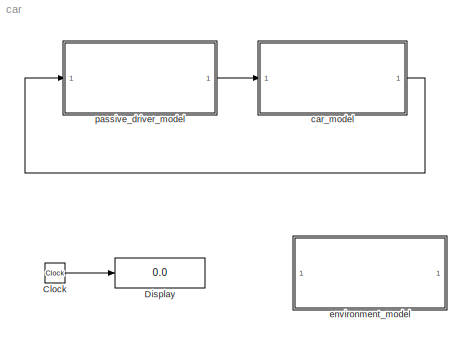
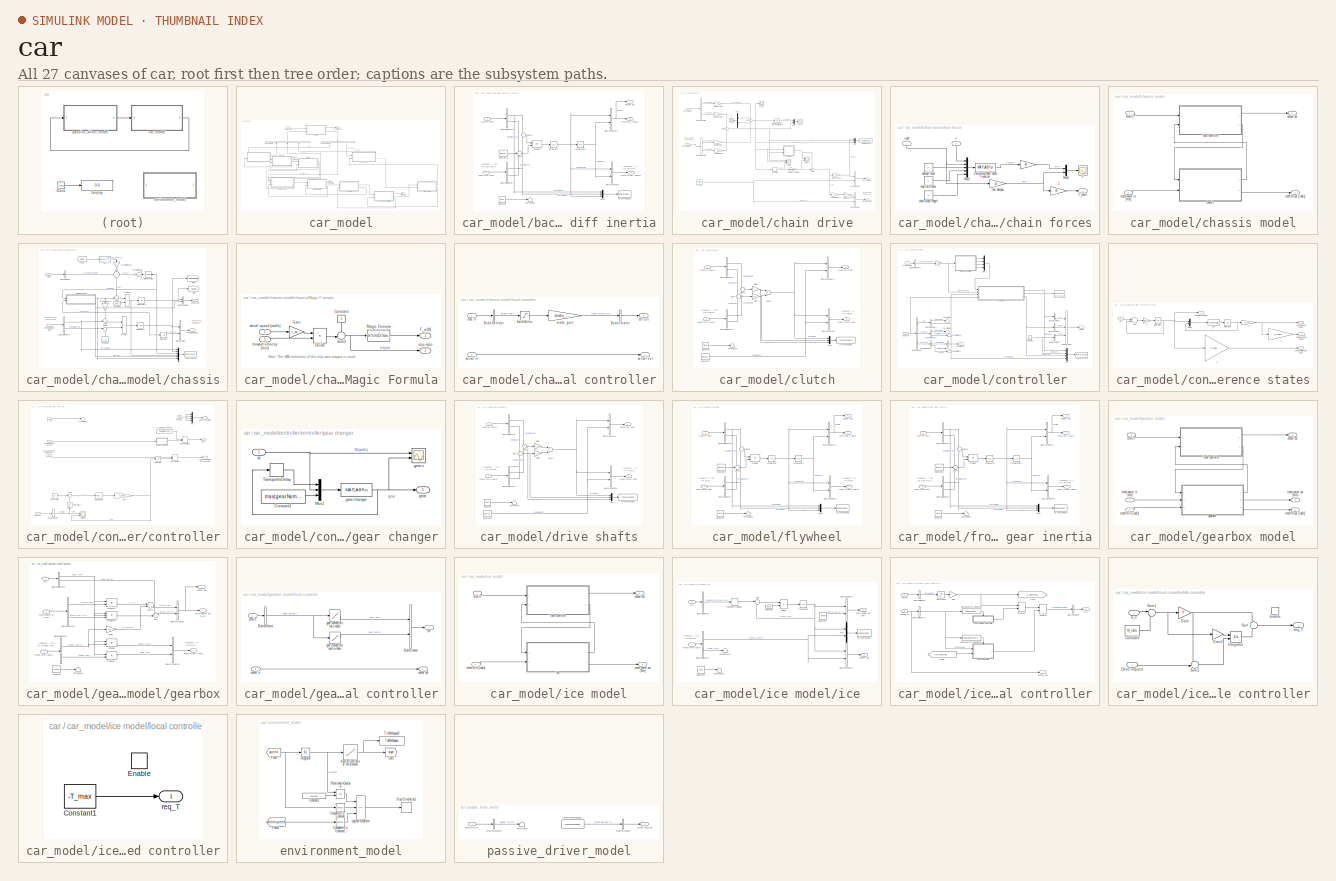
[diagram: thumbnail index - all 27 canvases of the model, root first then tree order]
MODEL car
KIND model
BLOCK [Clock] Clock
  SID = 1
BLOCK [Display] Display
  Decimation = 1
  Lockdown = off
  Ports = [1]
  SID = 2
BLOCK [SubSystem] car_model
  FunctionWithSeparateData = off
  MaskHideContents = off
  MinAlgLoopOccurrences = off
  Opaque = off
  Ports = [1, 1]
  PropExecContextOutsideSubsystem = off
  RTWSystemCode = Auto
  RequestExecContextInheritance = off
  SID = 3
BLOCK [BusCreator] car_model/Bus\nCreator
  DisplayOption = bar
  Inputs = 3
  Ports = [3, 1]
  SID = 5
BLOCK [BusSelector] car_model/Bus\nSelector
  OutputSignals = ice,gearbox,chassis
  Ports = [1, 3]
  SID = 6
BLOCK [Terminator] car_model/Terminator1
  SID = 85
BLOCK [Terminator] car_model/Terminator3
  SID = 9
BLOCK [Terminator] car_model/Terminator4
  SID = 86
BLOCK [SubSystem] car_model/back gear and diff inertia
  AncestorBlock = capsim_lib/Inertia/inertia_simple1_std
  FunctionWithSeparateData = off
  MaskHideContents = off
  MinAlgLoopOccurrences = off
  Opaque = off
  Ports = [2, 3]
  PropExecContextOutsideSubsystem = off
  RTWSystemCode = Auto
  RequestExecContextInheritance = off
  SID = 84
BLOCK [BusCreator] car_model/back gear and diff inertia/Bus\nCreator1
  DisplayOption = bar
  Inputs = 2
  Ports = [2, 1]
  SID = 84:3
BLOCK [BusCreator] car_model/back gear and diff inertia/Bus\nCreator5
  DisplayOption = bar
  Inputs = 2
  Ports = [2, 1]
  SID = 84:4
BLOCK [BusSelector] car_model/back gear and diff inertia/Bus\nSelector1
  OutputSignals = torque [Nm],inertia [kg m^2]
  Ports = [1, 2]
  SID = 84:5
BLOCK [BusSelector] car_model/back gear and diff inertia/Bus\nSelector5
  OutputSignals = torque [Nm],inertia [kg m^2]
  Ports = [1, 2]
  SID = 84:6
BLOCK [Constant] car_model/back gear and diff inertia/Constant
  SID = 84:7
  Value = mass
BLOCK [Constant] car_model/back gear and diff inertia/Constant1
  SID = 84:8
  Value = inertia
BLOCK [Integrator] car_model/back gear and diff inertia/Integrator
  InitialCondition = speedinit
  Ports = [1, 1]
  SID = 84:9
BLOCK [Integrator] car_model/back gear and diff inertia/Integrator1
  InitialCondition = angleinit
  Ports = [1, 1]
  SID = 84:10
BLOCK [Mux] car_model/back gear and diff inertia/Mux
  DisplayOption = bar
  Inputs = 3
  Ports = [3, 1]
  SID = 84:11
BLOCK [Product] car_model/back gear and diff inertia/Product
  InputSameDT = off
  Inputs = */
  Ports = [2, 1]
  RndMeth = Floor
  SID = 84:12
BLOCK [Sum] car_model/back gear and diff inertia/Sum1
  IconShape = round
  InputSameDT = off
  Inputs = +++
  OutDataTypeStr = Inherit: Inherit via internal rule
  Ports = [3, 1]
  SID = 84:13
BLOCK [Sum] car_model/back gear and diff inertia/Sum2
  IconShape = round
  InputSameDT = off
  Inputs = +|-
  OutDataTypeStr = Inherit: Inherit via internal rule
  Ports = [2, 1]
  SID = 84:14
BLOCK [Terminator] car_model/back gear and diff inertia/Terminator
  SID = 84:15
BLOCK [ToWorkspace] car_model/back gear and diff inertia/To Workspace
  MaxDataPoints = inf
  Ports = [1]
  SID = 84:16
  SampleTime = -1
  VariableName = finalgearout
BLOCK [Inport] car_model/back gear and diff inertia/mech fb in [Nm]
  IconDisplay = Port number
  Port = 2
  SID = 84:2
BLOCK [Outport] car_model/back gear and diff inertia/mech fb out [rad//s]
  IconDisplay = Port number
  Port = 3
  SID = 84:19
BLOCK [Inport] car_model/back gear and diff inertia/mech in [Nm]
  IconDisplay = Port number
  SID = 84:1
BLOCK [Outport] car_model/back gear and diff inertia/mech out [rad//s]
  IconDisplay = Port number
  Port = 2
  SID = 84:18
BLOCK [Outport] car_model/back gear and diff inertia/sensor out
  IconDisplay = Port number
  SID = 84:17
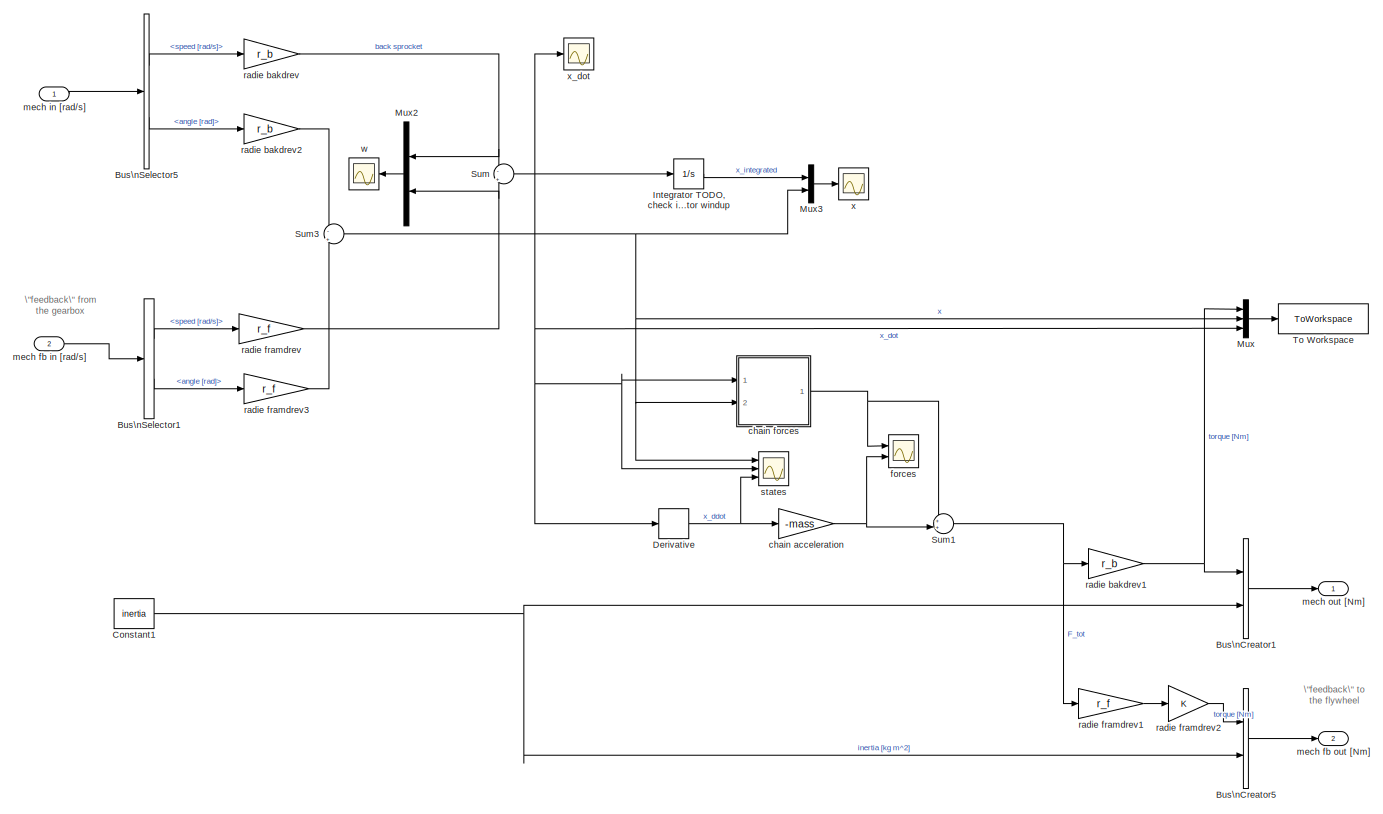
[diagram: car_model/chain drive - part 1/1, most of the canvas]
BLOCK [SubSystem] car_model/chain drive
  AncestorBlock = capsim_lib/MechConverter/mechconverter_simple1_std
  FunctionWithSeparateData = off
  MaskHideContents = off
  MinAlgLoopOccurrences = off
  Opaque = off
  Ports = [2, 2]
  PropExecContextOutsideSubsystem = off
  RTWSystemCode = Auto
  RequestExecContextInheritance = off
  SID = 77
BLOCK [BusCreator] car_model/chain drive/Bus\nCreator1
  DisplayOption = bar
  Inputs = 2
  Ports = [2, 1]
  SID = 77:3
BLOCK [BusCreator] car_model/chain drive/Bus\nCreator5
  DisplayOption = bar
  Inputs = 2
  Ports = [2, 1]
  SID = 77:4
BLOCK [BusSelector] car_model/chain drive/Bus\nSelector1
  OutputSignals = speed [rad/s],angle [rad]
  Ports = [1, 2]
  SID = 77:5
BLOCK [BusSelector] car_model/chain drive/Bus\nSelector5
  OutputSignals = speed [rad/s],angle [rad]
  Ports = [1, 2]
  SID = 77:6
BLOCK [Constant] car_model/chain drive/Constant1
  SID = 77:8
  Value = inertia
BLOCK [Derivative] car_model/chain drive/Derivative
  SID = 77:54
BLOCK [Integrator] car_model/chain drive/Integrator TODO, check integrator windup
  InitialCondition = 0.1
  LowerSaturationLimit = -S/2
  Ports = [1, 1]
  SID = 77:26
  UpperSaturationLimit = S/2
BLOCK [Mux] car_model/chain drive/Mux
  DisplayOption = bar
  Inputs = 3
  Ports = [3, 1]
  SID = 77:11
BLOCK [Mux] car_model/chain drive/Mux2
  DisplayOption = bar
  Inputs = 2
  Ports = [2, 1]
  SID = 77:45
BLOCK [Mux] car_model/chain drive/Mux3
  DisplayOption = bar
  Inputs = 2
  Ports = [2, 1]
  SID = 77:48
BLOCK [Sum] car_model/chain drive/Sum
  IconShape = round
  InputSameDT = off
  Inputs = -|+
  OutDataTypeStr = Inherit: Inherit via internal rule
  Ports = [2, 1]
  SID = 77:25
  SaturateOnIntegerOverflow = off
BLOCK [Sum] car_model/chain drive/Sum1
  IconShape = round
  InputSameDT = off
  Inputs = ++|
  OutDataTypeStr = Inherit: Inherit via internal rule
  Ports = [2, 1]
  SID = 77:60
  SaturateOnIntegerOverflow = off
BLOCK [Sum] car_model/chain drive/Sum3
  IconShape = round
  InputSameDT = off
  Inputs = -|+
  OutDataTypeStr = Inherit: Inherit via internal rule
  Ports = [2, 1]
  SID = 77:13
BLOCK [ToWorkspace] car_model/chain drive/To Workspace
  MaxDataPoints = inf
  Ports = [1]
  SID = 77:16
  SampleTime = -1
  VariableName = propellershaftout
BLOCK [Gain] car_model/chain drive/chain acceleration
  Gain = -mass
  OutDataTypeStr = Inherit: Inherit via internal rule
  ParamDataTypeStr = Inherit: Inherit via internal rule
  SID = 77:55
  SaturateOnIntegerOverflow = off
BLOCK [SubSystem] car_model/chain drive/chain forces
  FunctionWithSeparateData = off
  MaskHideContents = off
  MinAlgLoopOccurrences = off
  Opaque = off
  Ports = [2, 1]
  PropExecContextOutsideSubsystem = off
  RTWSystemCode = Auto
  RequestExecContextInheritance = off
  SID = 77:56
BLOCK [Gain] car_model/chain drive/chain forces/ 
  OutDataTypeStr = Inherit: Inherit via internal rule
  ParamDataTypeStr = Inherit: Inherit via internal rule
  SID = 77:52
  SaturateOnIntegerOverflow = off
BLOCK [Gain] car_model/chain drive/chain forces/ 1
  OutDataTypeStr = Inherit: Inherit via internal rule
  ParamDataTypeStr = Inherit: Inherit via internal rule
  SID = 77:53
  SaturateOnIntegerOverflow = off
BLOCK [Constant] car_model/chain drive/chain forces/ chain slack length
  SID = 77:35
  Value = S
BLOCK [Scope] car_model/chain drive/chain forces/F
  DataFormat = StructureWithTime
  Floating = off
  LegendLocations = 0.93982     0.92162    0.044671    0.039704
  LimitDataPoints = off
  NumInputPorts = 1
  Ports = [1]
  SID = 77:46
  SampleTime = 0
  SaveName = ScopeData1
  ShowLegends = on
  YMax = 250000
  YMin = -3.25e+06
BLOCK [Outport] car_model/chain drive/chain forces/F_chain
  IconDisplay = Port number
  SID = 77:59
BLOCK [MATLABFcn] car_model/chain drive/chain forces/Interpreted MATLAB Function
  MATLABFcn = chaindrive(u(1),u(2),u(3),u(4),u(5))
  Ports = [1, 1]
  SID = 77:31
BLOCK [Mux] car_model/chain drive/chain forces/Mux1
  DisplayOption = bar
  Inputs = 5
  Ports = [5, 1]
  SID = 77:32
BLOCK [Mux] car_model/chain drive/chain forces/Mux4
  DisplayOption = bar
  Inputs = 2
  Ports = [2, 1]
  SID = 77:51
BLOCK [Constant] car_model/chain drive/chain forces/chain stiffness
  SID = 77:34
  Value = k
BLOCK [Constant] car_model/chain drive/chain forces/damper const
  SID = 77:33
  Value = b
BLOCK [Gain] car_model/chain drive/chain forces/test damper
  Gain = -b
  OutDataTypeStr = Inherit: Inherit via internal rule
  ParamDataTypeStr = Inherit: Inherit via internal rule
  SID = 77:50
  SaturateOnIntegerOverflow = off
BLOCK [Inport] car_model/chain drive/chain forces/x
  IconDisplay = Port number
  Port = 2
  SID = 77:58
BLOCK [Inport] car_model/chain drive/chain forces/x_dot
  IconDisplay = Port number
  SID = 77:57
BLOCK [Scope] car_model/chain drive/forces
  DataFormat = StructureWithTime
  Floating = off
  LegendLocations = 0.84839     0.91986     0.20218    0.060773\n0.81101     0.44486     0.25923    0.060773
  LimitDataPoints = off
  NumInputPorts = 2
  Ports = [2]
  SID = 77:61
  SampleTime = 0
  SaveName = ScopeData4
  ShowLegends = on
  YMax = 5~5
  YMin = -5~-5
BLOCK [Inport] car_model/chain drive/mech fb in [rad//s]
  IconDisplay = Port number
  Port = 2
  SID = 77:2
BLOCK [Outport] car_model/chain drive/mech fb out [Nm]
  IconDisplay = Port number
  Port = 2
  SID = 77:18
BLOCK [Inport] car_model/chain drive/mech in [rad//s]
  IconDisplay = Port number
  SID = 77:1
BLOCK [Outport] car_model/chain drive/mech out [Nm]
  IconDisplay = Port number
  SID = 77:17
BLOCK [Gain] car_model/chain drive/radie bakdrev
  Gain = r_b
  OutDataTypeStr = Inherit: Inherit via internal rule
  ParamDataTypeStr = Inherit: Inherit via internal rule
  SID = 77:24
  SaturateOnIntegerOverflow = off
BLOCK [Gain] car_model/chain drive/radie bakdrev1
  Gain = r_b
  OutDataTypeStr = Inherit: Inherit via internal rule
  ParamDataTypeStr = Inherit: Inherit via internal rule
  SID = 77:36
  SaturateOnIntegerOverflow = off
BLOCK [Gain] car_model/chain drive/radie bakdrev2
  Gain = r_b
  OutDataTypeStr = Inherit: Inherit via internal rule
  ParamDataTypeStr = Inherit: Inherit via internal rule
  SID = 77:42
  SaturateOnIntegerOverflow = off
BLOCK [Gain] car_model/chain drive/radie framdrev
  Gain = r_f
  OutDataTypeStr = Inherit: Inherit via internal rule
  ParamDataTypeStr = Inherit: Inherit via internal rule
  SID = 77:23
  SaturateOnIntegerOverflow = off
BLOCK [Gain] car_model/chain drive/radie framdrev1
  Gain = r_f
  OutDataTypeStr = Inherit: Inherit via internal rule
  ParamDataTypeStr = Inherit: Inherit via internal rule
  SID = 77:37
  SaturateOnIntegerOverflow = off
BLOCK [Gain] car_model/chain drive/radie framdrev2
  OutDataTypeStr = Inherit: Inherit via internal rule
  ParamDataTypeStr = Inherit: Inherit via internal rule
  SID = 77:38
  SaturateOnIntegerOverflow = off
BLOCK [Gain] car_model/chain drive/radie framdrev3
  Gain = r_f
  OutDataTypeStr = Inherit: Inherit via internal rule
  ParamDataTypeStr = Inherit: Inherit via internal rule
  SID = 77:43
  SaturateOnIntegerOverflow = off
BLOCK [Scope] car_model/chain drive/states
  DataFormat = StructureWithTime
  Floating = off
  LegendLocations = 0.94971     0.93913    0.031609    0.022044\n0.93717     0.62249    0.044148    0.022044\n0.93352     0.30686    0.047806    0.022044
  LimitDataPoints = off
  NumInputPorts = 3
  Ports = [3]
  SID = 77:62
  SampleTime = 0
  SaveName = ScopeData5
  ShowLegends = on
  YMax = 5~5~5
  YMin = -5~-5~-5
BLOCK [Scope] car_model/chain drive/w
  DataFormat = StructureWithTime
  Floating = off
  LegendLocations = 0.91341     0.92162    0.067448    0.039625
  LimitDataPoints = off
  NumInputPorts = 1
  Ports = [1]
  SID = 77:44
  SampleTime = 0
  ShowLegends = on
BLOCK [Scope] car_model/chain drive/x
  DataFormat = StructureWithTime
  Floating = off
  LegendLocations = 0.59785     0.70024     0.20554     0.10946
  LimitDataPoints = off
  NumInputPorts = 1
  Ports = [1]
  SID = 77:47
  SampleTime = 0
  SaveName = ScopeData2
  ShowLegends = on
BLOCK [Scope] car_model/chain drive/x_dot
  DataFormat = StructureWithTime
  Floating = off
  LegendLocations = 0.62577     0.74582      0.2608     0.09205
  LimitDataPoints = off
  NumInputPorts = 1
  Ports = [1]
  SID = 77:49
  SampleTime = 0
  SaveName = ScopeData3
  ShowLegends = on
BLOCK [SubSystem] car_model/chassis model
  AncestorBlock = capsim_lib/Chassis/chassis_model_template
  FunctionWithSeparateData = off
  MaskHideContents = off
  MinAlgLoopOccurrences = off
  Opaque = off
  Ports = [2, 2]
  PropExecContextOutsideSubsystem = off
  RTWSystemCode = Auto
  RequestExecContextInheritance = off
  SID = 10
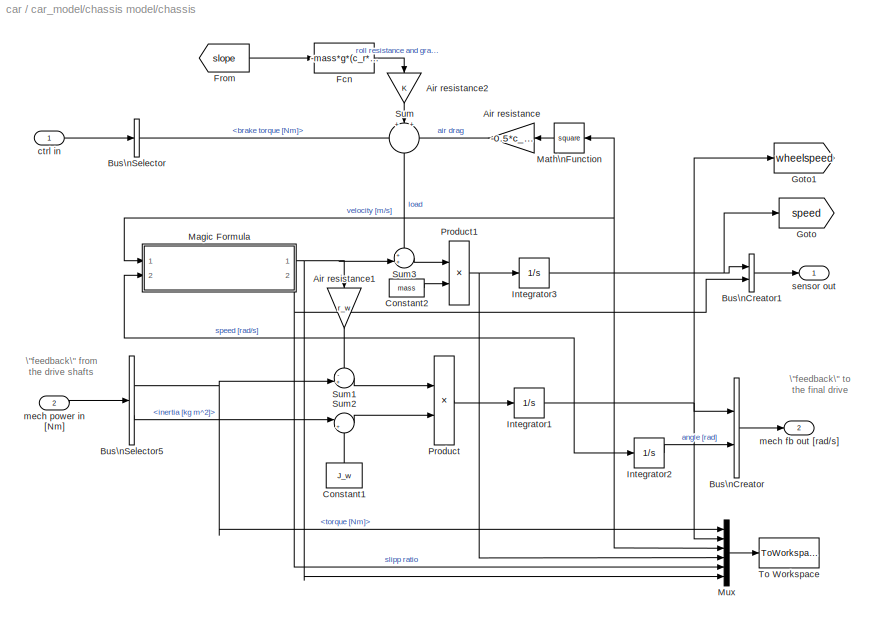
BLOCK [SubSystem] car_model/chassis model/chassis
  FunctionWithSeparateData = off
  MaskHideContents = off
  MinAlgLoopOccurrences = off
  Opaque = off
  Ports = [2, 2]
  PropExecContextOutsideSubsystem = off
  RTWSystemCode = Auto
  RequestExecContextInheritance = off
  SID = 10:3
BLOCK [Gain] car_model/chassis model/chassis/Air resistance
  Gain = -0.5*c_w*A_a*Rho_a
  SID = 10:6
BLOCK [Gain] car_model/chassis model/chassis/Air resistance1
  Gain = r_w
  SID = 10:7
BLOCK [Gain] car_model/chassis model/chassis/Air resistance2
  SID = 10:8
BLOCK [BusCreator] car_model/chassis model/chassis/Bus\nCreator
  DisplayOption = bar
  Inputs = 2
  Ports = [2, 1]
  SID = 10:9
BLOCK [BusCreator] car_model/chassis model/chassis/Bus\nCreator1
  DisplayOption = bar
  Inputs = 2
  Ports = [2, 1]
  SID = 10:10
BLOCK [BusSelector] car_model/chassis model/chassis/Bus\nSelector
  OutputSignals = brake torque [Nm]
  Ports = [1, 1]
  SID = 10:11
BLOCK [BusSelector] car_model/chassis model/chassis/Bus\nSelector5
  OutputSignals = torque [Nm],inertia [kg m^2]
  Ports = [1, 2]
  SID = 10:12
BLOCK [Constant] car_model/chassis model/chassis/Constant1
  SID = 10:13
  Value = J_w
BLOCK [Constant] car_model/chassis model/chassis/Constant2
  SID = 10:14
  Value = mass
BLOCK [Fcn] car_model/chassis model/chassis/Fcn
  Expr = -mass*g*(c_r*cos(u) + sin(u))
  SID = 10:15
BLOCK [From] car_model/chassis model/chassis/From
  CloseFcn = tagdialog Close
  GotoTag = slope
  SID = 10:16
  TagVisibility = global
BLOCK [Goto] car_model/chassis model/chassis/Goto
  GotoTag = speed
  SID = 10:17
  TagVisibility = global
BLOCK [Goto] car_model/chassis model/chassis/Goto1
  GotoTag = wheelspeed
  SID = 10:18
  TagVisibility = global
BLOCK [Integrator] car_model/chassis model/chassis/Integrator1
  InitialCondition = init_d
  Ports = [1, 1]
  SID = 10:19
BLOCK [Integrator] car_model/chassis model/chassis/Integrator2
  Ports = [1, 1]
  SID = 10:20
BLOCK [Integrator] car_model/chassis model/chassis/Integrator3
  InitialCondition = init_d*r_w
  Ports = [1, 1]
  SID = 10:21
BLOCK [SubSystem] car_model/chassis model/chassis/Magic Formula
  FunctionWithSeparateData = off
  MaskHideContents = off
  MinAlgLoopOccurrences = off
  Opaque = off
  Ports = [2, 2]
  PropExecContextOutsideSubsystem = off
  RTWSystemCode = Auto
  RequestExecContextInheritance = off
  SID = 10:22
BLOCK [Constant] car_model/chassis model/chassis/Magic Formula/Constant
  SID = 10:25
BLOCK [Product] car_model/chassis model/chassis/Magic Formula/Divide
  InputSameDT = off
  Inputs = */
  OutDataTypeStr = Inherit: Inherit via internal rule
  Ports = [2, 1]
  RndMeth = Floor
  SID = 10:26
  SaturateOnIntegerOverflow = off
BLOCK [Outport] car_model/chassis model/chassis/Magic Formula/F_w [N]
  IconDisplay = Port number
  SID = 10:30
BLOCK [Gain] car_model/chassis model/chassis/Magic Formula/Gain
  Gain = r_w
  OutDataTypeStr = Inherit: Inherit via internal rule
  ParamDataTypeStr = Inherit: Inherit via internal rule
  SID = 10:27
  SaturateOnIntegerOverflow = off
BLOCK [Fcn] car_model/chassis model/chassis/Magic Formula/Magic Formula
  Expr = Dx*sin(Cx*atan(Bx*u-Ex*(Bx*u-atan(Bx*u))))
  SID = 10:28
BLOCK [Sum] car_model/chassis model/chassis/Magic Formula/Sum3
  IconShape = round
  InputSameDT = off
  Inputs = -+|
  OutDataTypeStr = Inherit: Inherit via internal rule
  Ports = [2, 1]
  SID = 10:29
  SaturateOnIntegerOverflow = off
BLOCK [Inport] car_model/chassis model/chassis/Magic Formula/forward velocity [m//s]
  IconDisplay = Port number
  SID = 10:23
BLOCK [Outport] car_model/chassis model/chassis/Magic Formula/slip ratio
  IconDisplay = Port number
  Port = 2
  SID = 10:31
BLOCK [Inport] car_model/chassis model/chassis/Magic Formula/wheel speed [rad//s]
  IconDisplay = Port number
  Port = 2
  SID = 10:24
BLOCK [Math] car_model/chassis model/chassis/Math\nFunction
  Operator = square
  Ports = [1, 1]
  SID = 10:33
BLOCK [Mux] car_model/chassis model/chassis/Mux
  DisplayOption = bar
  Inputs = 6
  Ports = [6, 1]
  SID = 10:34
BLOCK [Product] car_model/chassis model/chassis/Product
  InputSameDT = off
  Inputs = */
  Ports = [2, 1]
  RndMeth = Floor
  SID = 10:35
BLOCK [Product] car_model/chassis model/chassis/Product1
  InputSameDT = off
  Inputs = */
  Ports = [2, 1]
  RndMeth = Floor
  SID = 10:36
BLOCK [Sum] car_model/chassis model/chassis/Sum
  IconShape = round
  InputSameDT = off
  Inputs = +|+|+
  OutDataTypeStr = Inherit: Inherit via internal rule
  Ports = [3, 1]
  SID = 10:37
BLOCK [Sum] car_model/chassis model/chassis/Sum1
  IconShape = round
  InputSameDT = off
  Inputs = -+|
  OutDataTypeStr = Inherit: Inherit via internal rule
  Ports = [2, 1]
  SID = 10:38
BLOCK [Sum] car_model/chassis model/chassis/Sum2
  IconShape = round
  InputSameDT = off
  Inputs = |++
  OutDataTypeStr = Inherit: Inherit via internal rule
  Ports = [2, 1]
  SID = 10:39
BLOCK [Sum] car_model/chassis model/chassis/Sum3
  IconShape = round
  InputSameDT = off
  Inputs = ++|
  OutDataTypeStr = Inherit: Inherit via internal rule
  Ports = [2, 1]
  SID = 10:40
BLOCK [ToWorkspace] car_model/chassis model/chassis/To Workspace
  MaxDataPoints = inf
  Ports = [1]
  SID = 10:41
  SampleTime = -1
  VariableName = chassisout
BLOCK [Inport] car_model/chassis model/chassis/ctrl in
  IconDisplay = Port number
  SID = 10:4
BLOCK [Outport] car_model/chassis model/chassis/mech fb out [rad//s]
  IconDisplay = Port number
  Port = 2
  SID = 10:43
BLOCK [Inport] car_model/chassis model/chassis/mech power in [Nm]
  IconDisplay = Port number
  Port = 2
  SID = 10:5
BLOCK [Outport] car_model/chassis model/chassis/sensor out
  IconDisplay = Port number
  SID = 10:42
BLOCK [Inport] car_model/chassis model/cmd in
  IconDisplay = Port number
  SID = 10:1
BLOCK [SubSystem] car_model/chassis model/local controller
  FunctionWithSeparateData = off
  MaskHideContents = off
  MinAlgLoopOccurrences = off
  Opaque = off
  Ports = [2, 2]
  PropExecContextOutsideSubsystem = off
  RTWSystemCode = Auto
  RequestExecContextInheritance = off
  SID = 10:46
BLOCK [BusCreator] car_model/chassis model/local controller/Bus\nCreator
  DisplayOption = bar
  Inputs = 1
  Ports = [1, 1]
  SID = 10:49
BLOCK [BusSelector] car_model/chassis model/local controller/Bus\nSelector
  OutputSignals = brake level
  Ports = [1, 1]
  SID = 10:50
BLOCK [Saturate] car_model/chassis model/local controller/Saturation
  InputPortMap = u0
  LowerLimit = 0
  Ports = [1, 1]
  SID = 10:51
  UpperLimit = 1
BLOCK [Gain] car_model/chassis model/local controller/brake_gain
  Gain = -brake_gain
  SID = 10:52
BLOCK [Inport] car_model/chassis model/local controller/cmd in
  IconDisplay = Port number
  SID = 10:47
BLOCK [Outport] car_model/chassis model/local controller/ctrl out
  IconDisplay = Port number
  Port = 2
  SID = 10:54
BLOCK [Inport] car_model/chassis model/local controller/sensor in
  IconDisplay = Port number
  Port = 2
  SID = 10:48
BLOCK [Outport] car_model/chassis model/local controller/sensor out
  IconDisplay = Port number
  SID = 10:53
BLOCK [Outport] car_model/chassis model/mech fb out [rad//s]
  IconDisplay = Port number
  Port = 2
  SID = 10:56
BLOCK [Inport] car_model/chassis model/mech power in [Nm]
  IconDisplay = Port number
  Port = 2
  SID = 10:2
BLOCK [Outport] car_model/chassis model/sensor out
  IconDisplay = Port number
  SID = 10:55
BLOCK [SubSystem] car_model/clutch
  AncestorBlock = capsim_lib/MechConverter/mechconverter_simple1_std
  FunctionWithSeparateData = off
  MaskHideContents = off
  MinAlgLoopOccurrences = off
  Opaque = off
  Ports = [2, 2]
  PropExecContextOutsideSubsystem = off
  RTWSystemCode = Auto
  RequestExecContextInheritance = off
  SID = 11
BLOCK [BusCreator] car_model/clutch/Bus\nCreator1
  DisplayOption = bar
  Inputs = 2
  Ports = [2, 1]
  SID = 11:3
BLOCK [BusCreator] car_model/clutch/Bus\nCreator5
  DisplayOption = bar
  Inputs = 2
  Ports = [2, 1]
  SID = 11:4
BLOCK [BusSelector] car_model/clutch/Bus\nSelector1
  OutputSignals = speed [rad/s],angle [rad]
  Ports = [1, 2]
  SID = 11:5
BLOCK [BusSelector] car_model/clutch/Bus\nSelector5
  OutputSignals = speed [rad/s],angle [rad]
  Ports = [1, 2]
  SID = 11:6
BLOCK [Constant] car_model/clutch/Constant
  SID = 11:7
  Value = mass
BLOCK [Constant] car_model/clutch/Constant1
  SID = 11:8
  Value = inertia
BLOCK [Gain] car_model/clutch/Gain
  Gain = k_c
  OutDataTypeStr = Inherit: Inherit via internal rule
  ParamDataTypeStr = Inherit: Inherit via internal rule
  SID = 11:9
  SaturateOnIntegerOverflow = off
BLOCK [Gain] car_model/clutch/Gain1
  Gain = c_c
  OutDataTypeStr = Inherit: Inherit via internal rule
  ParamDataTypeStr = Inherit: Inherit via internal rule
  SID = 11:10
  SaturateOnIntegerOverflow = off
BLOCK [Mux] car_model/clutch/Mux
  DisplayOption = bar
  Inputs = 3
  Ports = [3, 1]
  SID = 11:11
BLOCK [Sum] car_model/clutch/Sum2
  IconShape = round
  InputSameDT = off
  Inputs = +|-
  OutDataTypeStr = Inherit: Inherit via internal rule
  Ports = [2, 1]
  SID = 11:12
BLOCK [Sum] car_model/clutch/Sum3
  IconShape = round
  InputSameDT = off
  Inputs = +|-
  OutDataTypeStr = Inherit: Inherit via internal rule
  Ports = [2, 1]
  SID = 11:13
BLOCK [Sum] car_model/clutch/Sum4
  InputSameDT = off
  OutDataTypeStr = Inherit: Inherit via internal rule
  Ports = [2, 1]
  SID = 11:14
  SaturateOnIntegerOverflow = off
BLOCK [Terminator] car_model/clutch/Terminator
  SID = 11:15
BLOCK [ToWorkspace] car_model/clutch/To Workspace
  MaxDataPoints = inf
  Ports = [1]
  SID = 11:16
  SampleTime = -1
  VariableName = clutchout
BLOCK [Inport] car_model/clutch/mech fb in [rad//s]
  IconDisplay = Port number
  Port = 2
  SID = 11:2
BLOCK [Outport] car_model/clutch/mech fb out [Nm]
  IconDisplay = Port number
  Port = 2
  SID = 11:18
BLOCK [Inport] car_model/clutch/mech in [rad//s]
  IconDisplay = Port number
  SID = 11:1
BLOCK [Outport] car_model/clutch/mech out [Nm]
  IconDisplay = Port number
  SID = 11:17
BLOCK [SubSystem] car_model/controller
  AncestorBlock = capsim_lib/Controller/controller_template
  FunctionWithSeparateData = off
  MaskHideContents = off
  MinAlgLoopOccurrences = off
  Opaque = off
  Ports = [2, 2]
  PropExecContextOutsideSubsystem = off
  RTWSystemCode = Auto
  RequestExecContextInheritance = off
  SID = 12
BLOCK [Gain] car_model/controller/4
  Gain = T_max
  OutDataTypeStr = Inherit: Inherit via internal rule
  ParamDataTypeStr = Inherit: Inherit via internal rule
  SID = 12:3
  SaturateOnIntegerOverflow = off
BLOCK [BusCreator] car_model/controller/Bus\nCreator
  DisplayOption = bar
  Inputs = 3
  Ports = [3, 1]
  SID = 12:4
BLOCK [BusCreator] car_model/controller/Bus\nCreator1
  DisplayOption = bar
  Inputs = 1
  Ports = [1, 1]
  SID = 12:5
BLOCK [BusCreator] car_model/controller/Bus\nCreator3
  DisplayOption = bar
  Inputs = 1
  Ports = [1, 1]
  SID = 12:6
BLOCK [BusCreator] car_model/controller/Bus\nCreator4
  DisplayOption = bar
  Inputs = 1
  Ports = [1, 1]
  SID = 12:7
BLOCK [BusCreator] car_model/controller/Bus\nCreator5
  DisplayOption = bar
  Inputs = 1
  Ports = [1, 1]
  SID = 12:8
BLOCK [BusSelector] car_model/controller/Bus\nSelector
  OutputSignals = ice,gearbox,chassis
  Ports = [1, 3]
  SID = 12:9
BLOCK [BusSelector] car_model/controller/Bus\nSelector1
  OutputSignals = torque [Nm],speed [rad/s]
  Ports = [1, 2]
  SID = 12:10
BLOCK [BusSelector] car_model/controller/Bus\nSelector3
  OutputSignals = torque [Nm],inertia [kg m^2]
  Ports = [1, 2]
  SID = 12:11
BLOCK [BusSelector] car_model/controller/Bus\nSelector4
  OutputSignals = velocity [m/s],slipp ratio
  Ports = [1, 2]
  SID = 12:12
BLOCK [BusSelector] car_model/controller/Bus\nSelector5
  OutputSignals = Torque demand [%]
  Ports = [1, 1]
  SID = 12:13
BLOCK [Constant] car_model/controller/Constant
  SID = 12:14
  Value = 0
BLOCK [Mux] car_model/controller/Mux
  DisplayOption = bar
  Ports = [4, 1]
  SID = 12:16
BLOCK [Mux] car_model/controller/Mux1
  DisplayOption = bar
  Ports = [4, 1]
  SID = 12:17
BLOCK [SubSystem] car_model/controller/Reference states
  FunctionWithSeparateData = off
  MaskHideContents = off
  MinAlgLoopOccurrences = off
  Opaque = off
  Ports = [1, 4]
  PropExecContextOutsideSubsystem = off
  RTWSystemCode = Auto
  RequestExecContextInheritance = off
  SID = 12:18
BLOCK [Gain] car_model/controller/Reference states/1
  Gain = i_f*gearRatio(1)
  OutDataTypeStr = Inherit: Inherit via internal rule
  ParamDataTypeStr = Inherit: Inherit via internal rule
  SID = 12:20
  SaturateOnIntegerOverflow = off
BLOCK [Gain] car_model/controller/Reference states/2
  Gain = 1/tau_e
  OutDataTypeStr = Inherit: Inherit via internal rule
  ParamDataTypeStr = Inherit: Inherit via internal rule
  SID = 12:21
  SaturateOnIntegerOverflow = off
BLOCK [Gain] car_model/controller/Reference states/5
  Gain = 1/r_w
  OutDataTypeStr = Inherit: Inherit via internal rule
  ParamDataTypeStr = Inherit: Inherit via internal rule
  SID = 12:22
  SaturateOnIntegerOverflow = off
BLOCK [Gain] car_model/controller/Reference states/6
  Gain = i_f*gearRatio(1)/k_d
  OutDataTypeStr = Inherit: Inherit via internal rule
  ParamDataTypeStr = Inherit: Inherit via internal rule
  SID = 12:23
  SaturateOnIntegerOverflow = off
BLOCK [Sum] car_model/controller/Reference states/Add
  InputSameDT = off
  Inputs = +-
  OutDataTypeStr = Inherit: Inherit via internal rule
  Ports = [2, 1]
  SID = 12:24
  SaturateOnIntegerOverflow = off
BLOCK [Outport] car_model/controller/Reference states/Drive shaft torsion [rad]
  IconDisplay = Port number
  SID = 12:29
BLOCK [Outport] car_model/controller/Reference states/Engine speed [rad//s]
  IconDisplay = Port number
  Port = 2
  SID = 12:30
BLOCK [Outport] car_model/controller/Reference states/Engine torque [Nm]
  IconDisplay = Port number
  Port = 4
  SID = 12:32
BLOCK [Fcn] car_model/controller/Reference states/Fcn
  Expr = (i_f*gearRatio(1)/r_w*u(1)-0.5*Rho_a*c_w*A_a*u(2)^2-mass*g*c_r)/(mass+i_f^2*gearRatio(1)^2/r_w^2*J_e)
  SID = 12:25
BLOCK [Inport] car_model/controller/Reference states/In1
  IconDisplay = Port number
  SID = 12:19
BLOCK [Integrator] car_model/controller/Reference states/Integrator
  InitialCondition = 28/3.6
  Ports = [1, 1]
  SID = 12:26
BLOCK [Integrator] car_model/controller/Reference states/Integrator1
  InitialCondition = -8
  Ports = [1, 1]
  SID = 12:27
BLOCK [Mux] car_model/controller/Reference states/Mux6
  DisplayOption = bar
  Inputs = 2
  Ports = [2, 1]
  SID = 12:28
BLOCK [Outport] car_model/controller/Reference states/Wheel speed [rad//s]
  IconDisplay = Port number
  Port = 3
  SID = 12:31
BLOCK [Terminator] car_model/controller/Terminator1
  SID = 12:58
BLOCK [Terminator] car_model/controller/Terminator3
  SID = 12:33
BLOCK [Terminator] car_model/controller/Terminator5
  SID = 12:34
BLOCK [Terminator] car_model/controller/Terminator6
  SID = 12:35
BLOCK [ToWorkspace] car_model/controller/To Workspace
  MaxDataPoints = inf
  Ports = [1]
  SID = 12:36
  SampleTime = -1
  VariableName = controllerout
BLOCK [ToWorkspace] car_model/controller/To Workspace1
  MaxDataPoints = inf
  Ports = [1]
  SID = 12:37
  SampleTime = -1
  VariableName = obsstates
BLOCK [Outport] car_model/controller/cmd out
  IconDisplay = Port number
  Port = 2
  SID = 12:53
BLOCK [SubSystem] car_model/controller/controller
  FunctionWithSeparateData = off
  MaskHideContents = off
  MinAlgLoopOccurrences = off
  Opaque = off
  Ports = [4, 3]
  PropExecContextOutsideSubsystem = off
  RTWSystemCode = Auto
  RequestExecContextInheritance = off
  SID = 12:38
BLOCK [BusSelector] car_model/controller/controller/Bus\nSelector
  OutputSignals = chassis.slipp ratio
  Ports = [1, 1]
  SID = 12:56
BLOCK [Inport] car_model/controller/controller/Engine speed sensor
  IconDisplay = Port number
  Port = 3
  SID = 12:41
BLOCK [FromWorkspace] car_model/controller/controller/From\nWorkspace1
  SID = 12:15
  SampleTime = 0
  VariableName = [InputT InputG]
  ZeroCross = on
BLOCK [Gain] car_model/controller/controller/Gain
  Gain = T_max
  OutDataTypeStr = Inherit: Inherit via internal rule
  ParamDataTypeStr = Inherit: Inherit via internal rule
  SID = 12:79
  SaturateOnIntegerOverflow = off
BLOCK [Ground] car_model/controller/controller/Ground1
  SID = 12:43
BLOCK [ManualSwitch] car_model/controller/controller/Manual Switch
  SID = 12:44
BLOCK [ManualSwitch] car_model/controller/controller/Manual Switch1
  CurrentSetting = 0
  SID = 12:84
BLOCK [Mux] car_model/controller/controller/Mux
  DisplayOption = bar
  Ports = [4, 1]
  SID = 12:45
BLOCK [Outport] car_model/controller/controller/Observed states
  IconDisplay = Port number
  Port = 2
  SID = 12:49
BLOCK [Reference] car_model/controller/controller/PID Controller  REF=simulink/Continuous/PID Controller
  AntiWindupMode = none
  Controller = PID
  D = 0
  DOutDataTypeStr = Inherit: Inherit via internal rule
  DOutMax = []
  DOutMin = []
  DParamDataTypeStr = Inherit: Inherit via internal rule
  DParamMax = []
  DParamMin = []
  ExternalReset = none
  FilterContinuousStateAttributes = ''
  FilterMethod = Forward Euler
  FilterOutDataTypeStr = Inherit: Inherit via internal rule
  FilterOutMax = []
  FilterOutMin = []
  FilterRTWStateStorageClass = Auto
  FilterStateMustResolveToSignalObject = off
  Form = Parallel
  I = 1
  IOutDataTypeStr = Inherit: Inherit via internal rule
  IOutMax = []
  IOutMin = []
  IParamDataTypeStr = Inherit: Inherit via internal rule
  IParamMax = []
  IParamMin = []
  IgnoreLimit = off
  InitialConditionForFilter = 0
  InitialConditionForIntegrator = 0
  InitialConditionSource = internal
  IntegratorContinuousStateAttributes = ''
  IntegratorMethod = Forward Euler
  IntegratorOutDataTypeStr = Inherit: Inherit via internal rule
  IntegratorOutMax = []
  IntegratorOutMin = []
  IntegratorRTWStateStorageClass = Auto
  IntegratorStateMustResolveToSignalObject = off
  Kb = 1
  KbOutDataTypeStr = Inherit: Inherit via internal rule
  KbOutMax = []
  KbOutMin = []
  KbParamDataTypeStr = Inherit: Inherit via internal rule
  KbParamMax = []
  KbParamMin = []
  Kt = 1
  KtOutDataTypeStr = Inherit: Inherit via internal rule
  KtOutMax = []
  KtOutMin = []
  KtParamDataTypeStr = Inherit: Inherit via internal rule
  KtParamMax = []
  KtParamMin = []
  LimitOutput = off
  LinearizeAsGain = on
  LockScale = off
  LowerSaturationLimit = -inf
  N = 100
  NOutDataTypeStr = Inherit: Inherit via internal rule
  NOutMax = []
  NOutMin = []
  NParamDataTypeStr = Inherit: Inherit via internal rule
  NParamMax = []
  NParamMin = []
  P = 1
  POutDataTypeStr = Inherit: Inherit via internal rule
  POutMax = []
  POutMin = []
  PParamDataTypeStr = Inherit: Inherit via internal rule
  PParamMax = []
  PParamMin = []
  Ports = [1, 1]
  RndMeth = Floor
  SID = 12:78
  SampleTime = 1
  SaturateOnIntegerOverflow = off
  SaturationOutDataTypeStr = Inherit: Same as input
  SaturationOutMax = []
  SaturationOutMin = []
  SourceBlock = simulink/Continuous/PID Controller
  SourceType = PID 1dof
  SumAccumDataTypeStr = Inherit: Inherit via internal rule
  SumDAccumDataTypeStr = Inherit: Inherit via internal rule
  SumDOutDataTypeStr = Inherit: Inherit via internal rule
  SumDOutMax = []
  SumDOutMin = []
  SumI1AccumDataTypeStr = Inherit: Inherit via internal rule
  SumI1OutDataTypeStr = Inherit: Inherit via internal rule
  SumI1OutMax = []
  SumI1OutMin = []
  SumI2AccumDataTypeStr = Inherit: Inherit via internal rule
  SumI2OutDataTypeStr = Inherit: Inherit via internal rule
  SumI2OutMax = []
  SumI2OutMin = []
  SumI3AccumDataTypeStr = Inherit: Inherit via internal rule
  SumI3OutDataTypeStr = Inherit: Inherit via internal rule
  SumI3OutMax = []
  SumI3OutMin = []
  SumOutDataTypeStr = Inherit: Inherit via internal rule
  SumOutMax = []
  SumOutMin = []
  TimeDomain = Continuous-time
  TrackingMode = off
  UpperSaturationLimit = inf
  ZeroCross = on
BLOCK [Saturate] car_model/controller/controller/Saturation
  InputPortMap = u0
  LowerLimit = 0
  Ports = [1, 1]
  SID = 12:81
  UpperLimit = T_max
BLOCK [Saturate] car_model/controller/controller/Saturation1
  InputPortMap = u0
  LowerLimit = -inf
  Ports = [1, 1]
  SID = 12:83
  UpperLimit = 3
BLOCK [Sum] car_model/controller/controller/Sum
  IconShape = round
  InputSameDT = off
  Inputs = |+-
  OutDataTypeStr = Inherit: Inherit via internal rule
  Ports = [2, 1]
  SID = 12:77
  SaturateOnIntegerOverflow = off
BLOCK [Terminator] car_model/controller/controller/Terminator1
  SID = 12:62
BLOCK [Outport] car_model/controller/controller/Torque demand from controller
  IconDisplay = Port number
  SID = 12:48
BLOCK [Inport] car_model/controller/controller/Torque demand from driver
  IconDisplay = Port number
  Port = 2
  SID = 12:40
BLOCK [Constant] car_model/controller/controller/desierd slipp
  SID = 12:76
  Value = 0.3
BLOCK [Outport] car_model/controller/controller/gear
  IconDisplay = Port number
  Port = 3
  SID = 12:59
BLOCK [SubSystem] car_model/controller/controller/gear changer
  FunctionWithSeparateData = off
  MaskHideContents = off
  MinAlgLoopOccurrences = off
  Opaque = off
  Ports = [1, 1]
  PropExecContextOutsideSubsystem = off
  RTWSystemCode = Auto
  RequestExecContextInheritance = off
  SID = 12:71
BLOCK [Constant] car_model/controller/controller/gear changer/Constant1
  SID = 12:69
  Value = max(gearNumber)
BLOCK [Mux] car_model/controller/controller/gear changer/Mux1
  DisplayOption = bar
  Inputs = 3
  Ports = [3, 1]
  SID = 12:68
BLOCK [Inport] car_model/controller/controller/gear changer/N
  IconDisplay = Port number
  SID = 12:72
BLOCK [TransportDelay] car_model/controller/controller/gear changer/Transport\nDelay
  DelayTime = 0.07
  Ports = [1, 1]
  SID = 12:70
BLOCK [Outport] car_model/controller/controller/gear changer/gear
  IconDisplay = Port number
  SID = 12:73
BLOCK [MATLABFcn] car_model/controller/controller/gear changer/gear changer
  MATLABFcn = gearchange(u(1),u(2),u(3))
  Ports = [1, 1]
  SID = 12:67
BLOCK [Scope] car_model/controller/controller/gear changer/gear s
  DataFormat = StructureWithTime
  Floating = off
  LegendLocations = 0.9306     0.93925    0.050418    0.022044\n0.91445     0.46425    0.066614    0.022044
  LimitDataPoints = off
  NumInputPorts = 2
  Ports = [2]
  SID = 12:74
  SampleTime = 0
  SaveName = ScopeData7
  ShowLegends = on
  YMax = 5~5
  YMin = -5~-5
BLOCK [Inport] car_model/controller/controller/sensors
  IconDisplay = Port number
  Port = 4
  SID = 12:54
BLOCK [Scope] car_model/controller/controller/slipp
  DataFormat = StructureWithTime
  Floating = off
  LimitDataPoints = off
  NumInputPorts = 2
  Ports = [2]
  SID = 12:61
  SampleTime = 0
  SaveName = ScopeData6
  ShowLegends = on
  YMax = 0.0003~5
  YMin = -0.00035~-5
BLOCK [Inport] car_model/controller/controller/x_ref
  IconDisplay = Port number
  SID = 12:39
BLOCK [Inport] car_model/controller/driver cmd in
  IconDisplay = Port number
  SID = 12:1
BLOCK [Inport] car_model/controller/sensor in
  IconDisplay = Port number
  Port = 2
  SID = 12:2
BLOCK [Outport] car_model/controller/vehicle fb out
  IconDisplay = Port number
  SID = 12:52
BLOCK [SubSystem] car_model/drive shafts
  AncestorBlock = capsim_lib/MechConverter/mechconverter_simple1_std
  FunctionWithSeparateData = off
  MaskHideContents = off
  MinAlgLoopOccurrences = off
  Opaque = off
  Ports = [2, 2]
  PropExecContextOutsideSubsystem = off
  RTWSystemCode = Auto
  RequestExecContextInheritance = off
  SID = 13
BLOCK [BusCreator] car_model/drive shafts/Bus\nCreator1
  DisplayOption = bar
  Inputs = 2
  Ports = [2, 1]
  SID = 13:3
BLOCK [BusCreator] car_model/drive shafts/Bus\nCreator5
  DisplayOption = bar
  Inputs = 2
  Ports = [2, 1]
  SID = 13:4
BLOCK [BusSelector] car_model/drive shafts/Bus\nSelector1
  OutputSignals = speed [rad/s],angle [rad]
  Ports = [1, 2]
  SID = 13:5
BLOCK [BusSelector] car_model/drive shafts/Bus\nSelector5
  OutputSignals = speed [rad/s],angle [rad]
  Ports = [1, 2]
  SID = 13:6
BLOCK [Constant] car_model/drive shafts/Constant
  SID = 13:7
  Value = mass
BLOCK [Constant] car_model/drive shafts/Constant1
  SID = 13:8
  Value = inertia
BLOCK [Gain] car_model/drive shafts/Gain
  Gain = k_d
  OutDataTypeStr = Inherit: Inherit via internal rule
  ParamDataTypeStr = Inherit: Inherit via internal rule
  SID = 13:9
  SaturateOnIntegerOverflow = off
BLOCK [Gain] car_model/drive shafts/Gain1
  Gain = c_d
  OutDataTypeStr = Inherit: Inherit via internal rule
  ParamDataTypeStr = Inherit: Inherit via internal rule
  SID = 13:10
  SaturateOnIntegerOverflow = off
BLOCK [Mux] car_model/drive shafts/Mux
  DisplayOption = bar
  Inputs = 3
  Ports = [3, 1]
  SID = 13:11
BLOCK [Sum] car_model/drive shafts/Sum2
  IconShape = round
  InputSameDT = off
  Inputs = +|-
  OutDataTypeStr = Inherit: Inherit via internal rule
  Ports = [2, 1]
  SID = 13:12
BLOCK [Sum] car_model/drive shafts/Sum3
  IconShape = round
  InputSameDT = off
  Inputs = +|-
  OutDataTypeStr = Inherit: Inherit via internal rule
  Ports = [2, 1]
  SID = 13:13
BLOCK [Sum] car_model/drive shafts/Sum4
  InputSameDT = off
  OutDataTypeStr = Inherit: Inherit via internal rule
  Ports = [2, 1]
  SID = 13:14
  SaturateOnIntegerOverflow = off
BLOCK [Terminator] car_model/drive shafts/Terminator
  SID = 13:15
BLOCK [ToWorkspace] car_model/drive shafts/To Workspace
  MaxDataPoints = inf
  Ports = [1]
  SID = 13:16
  SampleTime = -1
  VariableName = driveshaftsout
BLOCK [Inport] car_model/drive shafts/mech fb in [rad//s]
  IconDisplay = Port number
  Port = 2
  SID = 13:2
BLOCK [Outport] car_model/drive shafts/mech fb out [Nm]
  IconDisplay = Port number
  Port = 2
  SID = 13:18
BLOCK [Inport] car_model/drive shafts/mech in [rad//s]
  IconDisplay = Port number
  SID = 13:1
BLOCK [Outport] car_model/drive shafts/mech out [Nm]
  IconDisplay = Port number
  SID = 13:17
BLOCK [Inport] car_model/driver cmd in
  IconDisplay = Port number
  SID = 4
BLOCK [SubSystem] car_model/flywheel
  AncestorBlock = capsim_lib/Inertia/inertia_simple1_std
  FunctionWithSeparateData = off
  MaskHideContents = off
  MinAlgLoopOccurrences = off
  Opaque = off
  Ports = [2, 3]
  PropExecContextOutsideSubsystem = off
  RTWSystemCode = Auto
  RequestExecContextInheritance = off
  SID = 16
BLOCK [BusCreator] car_model/flywheel/Bus\nCreator1
  DisplayOption = bar
  Inputs = 2
  Ports = [2, 1]
  SID = 16:3
BLOCK [BusCreator] car_model/flywheel/Bus\nCreator5
  DisplayOption = bar
  Inputs = 2
  Ports = [2, 1]
  SID = 16:4
BLOCK [BusSelector] car_model/flywheel/Bus\nSelector1
  OutputSignals = torque [Nm],inertia [kg m^2]
  Ports = [1, 2]
  SID = 16:5
BLOCK [BusSelector] car_model/flywheel/Bus\nSelector5
  OutputSignals = torque [Nm],inertia [kg m^ 2]
  Ports = [1, 2]
  SID = 16:6
BLOCK [Constant] car_model/flywheel/Constant
  SID = 16:7
  Value = mass
BLOCK [Constant] car_model/flywheel/Constant1
  SID = 16:8
  Value = inertia
BLOCK [Integrator] car_model/flywheel/Integrator
  InitialCondition = speedinit
  Ports = [1, 1]
  SID = 16:9
BLOCK [Integrator] car_model/flywheel/Integrator1
  InitialCondition = angleinit
  Ports = [1, 1]
  SID = 16:10
BLOCK [Mux] car_model/flywheel/Mux
  DisplayOption = bar
  Inputs = 3
  Ports = [3, 1]
  SID = 16:11
BLOCK [Product] car_model/flywheel/Product
  InputSameDT = off
  Inputs = */
  Ports = [2, 1]
  RndMeth = Floor
  SID = 16:12
BLOCK [Sum] car_model/flywheel/Sum1
  IconShape = round
  InputSameDT = off
  Inputs = +++
  OutDataTypeStr = Inherit: Inherit via internal rule
  Ports = [3, 1]
  SID = 16:13
BLOCK [Sum] car_model/flywheel/Sum2
  IconShape = round
  InputSameDT = off
  Inputs = +|-
  OutDataTypeStr = Inherit: Inherit via internal rule
  Ports = [2, 1]
  SID = 16:14
BLOCK [Terminator] car_model/flywheel/Terminator
  SID = 16:15
BLOCK [ToWorkspace] car_model/flywheel/To Workspace
  MaxDataPoints = inf
  Ports = [1]
  SID = 16:16
  SampleTime = -1
  VariableName = flywheelout
BLOCK [Inport] car_model/flywheel/mech fb in [Nm]
  IconDisplay = Port number
  Port = 2
  SID = 16:2
BLOCK [Outport] car_model/flywheel/mech fb out [rad//s]
  IconDisplay = Port number
  Port = 3
  SID = 16:19
BLOCK [Inport] car_model/flywheel/mech in [Nm]
  IconDisplay = Port number
  SID = 16:1
BLOCK [Outport] car_model/flywheel/mech out [rad//s]
  IconDisplay = Port number
  Port = 2
  SID = 16:18
BLOCK [Outport] car_model/flywheel/sensor out
  IconDisplay = Port number
  SID = 16:17
BLOCK [SubSystem] car_model/front gear inertia
  AncestorBlock = capsim_lib/Inertia/inertia_simple1_std
  FunctionWithSeparateData = off
  MaskHideContents = off
  MinAlgLoopOccurrences = off
  Opaque = off
  Ports = [2, 3]
  PropExecContextOutsideSubsystem = off
  RTWSystemCode = Auto
  RequestExecContextInheritance = off
  SID = 83
BLOCK [BusCreator] car_model/front gear inertia/Bus\nCreator1
  DisplayOption = bar
  Inputs = 2
  Ports = [2, 1]
  SID = 83:3
BLOCK [BusCreator] car_model/front gear inertia/Bus\nCreator5
  DisplayOption = bar
  Inputs = 2
  Ports = [2, 1]
  SID = 83:4
BLOCK [BusSelector] car_model/front gear inertia/Bus\nSelector1
  OutputSignals = torque [Nm],inertia [kg m^2]
  Ports = [1, 2]
  SID = 83:5
BLOCK [BusSelector] car_model/front gear inertia/Bus\nSelector5
  OutputSignals = torque [Nm],inertia [kg m^2]
  Ports = [1, 2]
  SID = 83:6
BLOCK [Constant] car_model/front gear inertia/Constant
  SID = 83:7
  Value = mass
BLOCK [Constant] car_model/front gear inertia/Constant1
  SID = 83:8
  Value = inertia
BLOCK [Integrator] car_model/front gear inertia/Integrator
  InitialCondition = speedinit
  Ports = [1, 1]
  SID = 83:9
BLOCK [Integrator] car_model/front gear inertia/Integrator1
  InitialCondition = angleinit
  Ports = [1, 1]
  SID = 83:10
BLOCK [Mux] car_model/front gear inertia/Mux
  DisplayOption = bar
  Inputs = 3
  Ports = [3, 1]
  SID = 83:11
BLOCK [Product] car_model/front gear inertia/Product
  InputSameDT = off
  Inputs = */
  Ports = [2, 1]
  RndMeth = Floor
  SID = 83:12
BLOCK [Sum] car_model/front gear inertia/Sum1
  IconShape = round
  InputSameDT = off
  Inputs = +++
  OutDataTypeStr = Inherit: Inherit via internal rule
  Ports = [3, 1]
  SID = 83:13
BLOCK [Sum] car_model/front gear inertia/Sum2
  IconShape = round
  InputSameDT = off
  Inputs = +|-
  OutDataTypeStr = Inherit: Inherit via internal rule
  Ports = [2, 1]
  SID = 83:14
BLOCK [Terminator] car_model/front gear inertia/Terminator
  SID = 83:15
BLOCK [ToWorkspace] car_model/front gear inertia/To Workspace
  MaxDataPoints = inf
  Ports = [1]
  SID = 83:16
  SampleTime = -1
  VariableName = gearinertiaout
BLOCK [Inport] car_model/front gear inertia/mech fb in [Nm]
  IconDisplay = Port number
  Port = 2
  SID = 83:2
BLOCK [Outport] car_model/front gear inertia/mech fb out [rad//s]
  IconDisplay = Port number
  Port = 3
  SID = 83:19
BLOCK [Inport] car_model/front gear inertia/mech in [Nm]
  IconDisplay = Port number
  SID = 83:1
BLOCK [Outport] car_model/front gear inertia/mech out [rad//s]
  IconDisplay = Port number
  Port = 2
  SID = 83:18
BLOCK [Outport] car_model/front gear inertia/sensor out
  IconDisplay = Port number
  SID = 83:17
BLOCK [SubSystem] car_model/gearbox model
  AncestorBlock = capsim_lib/Gearbox/gearbox_template
  FunctionWithSeparateData = off
  MaskHideContents = off
  MinAlgLoopOccurrences = off
  Opaque = off
  Ports = [3, 3]
  PropExecContextOutsideSubsystem = off
  RTWSystemCode = Auto
  RequestExecContextInheritance = off
  SID = 18
BLOCK [Inport] car_model/gearbox model/cmd in
  IconDisplay = Port number
  SID = 18:1
BLOCK [SubSystem] car_model/gearbox model/gearbox
  FunctionWithSeparateData = off
  MaskHideContents = off
  MinAlgLoopOccurrences = off
  Opaque = off
  Ports = [3, 3]
  PropExecContextOutsideSubsystem = off
  RTWSystemCode = Auto
  RequestExecContextInheritance = off
  SID = 18:4
BLOCK [BusCreator] car_model/gearbox model/gearbox/Bus\nCreator
  DisplayOption = bar
  Inputs = 2
  Ports = [2, 1]
  SID = 18:8
BLOCK [BusCreator] car_model/gearbox model/gearbox/Bus\nCreator5
  DisplayOption = bar
  Inputs = 2
  Ports = [2, 1]
  SID = 18:9
BLOCK [BusSelector] car_model/gearbox model/gearbox/Bus\nSelector1
  OutputSignals = speed [rad/s],angle [rad]
  Ports = [1, 2]
  SID = 18:10
BLOCK [BusSelector] car_model/gearbox model/gearbox/Bus\nSelector2
  OutputSignals = gear ratio,gear inertia
  Ports = [1, 2]
  SID = 18:11
BLOCK [BusSelector] car_model/gearbox model/gearbox/Bus\nSelector5
  OutputSignals = torque [Nm],inertia [kg m^2]
  Ports = [1, 2]
  SID = 18:12
BLOCK [Constant] car_model/gearbox model/gearbox/Constant
  SID = 18:13
  Value = mass
BLOCK [Gain] car_model/gearbox model/gearbox/Gain
  Gain = b_t
  OutDataTypeStr = Inherit: Inherit via internal rule
  ParamDataTypeStr = Inherit: Inherit via internal rule
  SID = 18:14
  SaturateOnIntegerOverflow = off
BLOCK [Product] car_model/gearbox model/gearbox/Product
  InputSameDT = off
  Inputs = **
  Ports = [2, 1]
  RndMeth = Floor
  SID = 18:15
BLOCK [Product] car_model/gearbox model/gearbox/Product1
  InputSameDT = off
  Inputs = **
  Ports = [2, 1]
  RndMeth = Floor
  SID = 18:16
BLOCK [Product] car_model/gearbox model/gearbox/Product2
  InputSameDT = off
  Ports = [2, 1]
  RndMeth = Floor
  SID = 18:17
BLOCK [Product] car_model/gearbox model/gearbox/Product3
  InputSameDT = off
  Inputs = 3
  Ports = [3, 1]
  RndMeth = Floor
  SID = 18:18
BLOCK [Sum] car_model/gearbox model/gearbox/Sum
  IconShape = round
  InputSameDT = off
  Inputs = ++|
  OutDataTypeStr = Inherit: Inherit via internal rule
  Ports = [2, 1]
  SID = 18:19
  SaturateOnIntegerOverflow = off
BLOCK [Sum] car_model/gearbox model/gearbox/Sum1
  InputSameDT = off
  Inputs = +-
  OutDataTypeStr = Inherit: Inherit via internal rule
  Ports = [2, 1]
  SID = 18:20
  SaturateOnIntegerOverflow = off
BLOCK [Terminator] car_model/gearbox model/gearbox/Terminator
  SID = 18:21
BLOCK [Inport] car_model/gearbox model/gearbox/ctrl
  IconDisplay = Port number
  SID = 18:5
BLOCK [Inport] car_model/gearbox model/gearbox/mech fb in [rad//s]
  IconDisplay = Port number
  Port = 3
  SID = 18:7
BLOCK [Outport] car_model/gearbox model/gearbox/mech fb out [rad//s]
  IconDisplay = Port number
  Port = 3
  SID = 18:24
BLOCK [Inport] car_model/gearbox model/gearbox/mech power in [Nm]
  IconDisplay = Port number
  Port = 2
  SID = 18:6
BLOCK [Outport] car_model/gearbox model/gearbox/mech power out [Nm]
  IconDisplay = Port number
  Port = 2
  SID = 18:23
BLOCK [Outport] car_model/gearbox model/gearbox/sensor out
  IconDisplay = Port number
  SID = 18:22
BLOCK [SubSystem] car_model/gearbox model/local controller
  FunctionWithSeparateData = off
  MaskHideContents = off
  MinAlgLoopOccurrences = off
  Opaque = off
  Ports = [2, 2]
  PropExecContextOutsideSubsystem = off
  RTWSystemCode = Auto
  RequestExecContextInheritance = off
  SID = 18:27
BLOCK [BusCreator] car_model/gearbox model/local controller/Bus\nCreator
  DisplayOption = bar
  Inputs = 2
  Ports = [2, 1]
  SID = 18:30
BLOCK [BusSelector] car_model/gearbox model/local controller/Bus\nSelector
  OutputSignals = gear number
  Ports = [1, 1]
  SID = 18:31
BLOCK [Inport] car_model/gearbox model/local controller/cmd in
  IconDisplay = Port number
  SID = 18:28
BLOCK [Outport] car_model/gearbox model/local controller/ctrl
  IconDisplay = Port number
  Port = 2
  SID = 18:35
BLOCK [Lookup] car_model/gearbox model/local controller/gear number\nto inertia table
  InputValues = gearNumber
  LookUpMeth = Interpolation-Use End Values
  SID = 18:32
  Table = gearInertia
BLOCK [Lookup] car_model/gearbox model/local controller/gear number\nto ratio table
  InputValues = gearNumber
  LookUpMeth = Interpolation-Use End Values
  SID = 18:33
  Table = gearRatio
BLOCK [Inport] car_model/gearbox model/local controller/sensor in
  IconDisplay = Port number
  Port = 2
  SID = 18:29
BLOCK [Outport] car_model/gearbox model/local controller/sensor out
  IconDisplay = Port number
  SID = 18:34
BLOCK [Inport] car_model/gearbox model/mech fb in [rad//s]
  IconDisplay = Port number
  Port = 3
  SID = 18:3
BLOCK [Outport] car_model/gearbox model/mech fb out [rad//s]
  IconDisplay = Port number
  Port = 3
  SID = 18:38
BLOCK [Inport] car_model/gearbox model/mech power in [Nm]
  IconDisplay = Port number
  Port = 2
  SID = 18:2
BLOCK [Outport] car_model/gearbox model/mech power out [Nm]
  IconDisplay = Port number
  Port = 2
  SID = 18:37
BLOCK [Outport] car_model/gearbox model/sensor out
  IconDisplay = Port number
  SID = 18:36
BLOCK [SubSystem] car_model/ice model
  FunctionWithSeparateData = off
  MaskHideContents = off
  MinAlgLoopOccurrences = off
  Opaque = off
  Ports = [2, 2]
  PropExecContextOutsideSubsystem = off
  RTWSystemCode = Auto
  RequestExecContextInheritance = off
  SID = 19
BLOCK [Inport] car_model/ice model/cmd in
  IconDisplay = Port number
  SID = 20
BLOCK [SubSystem] car_model/ice model/ice
  FunctionWithSeparateData = off
  MaskHideContents = off
  MinAlgLoopOccurrences = off
  Opaque = off
  Ports = [2, 2]
  PropExecContextOutsideSubsystem = off
  RTWSystemCode = Auto
  RequestExecContextInheritance = off
  SID = 22
BLOCK [BusCreator] car_model/ice model/ice/Bus\nCreator
  DisplayOption = bar
  Inputs = 2
  Ports = [2, 1]
  SID = 25
BLOCK [BusCreator] car_model/ice model/ice/Bus\nCreator1
  DisplayOption = bar
  Inputs = 2
  Ports = [2, 1]
  SID = 26
BLOCK [BusSelector] car_model/ice model/ice/Bus\nSelector
  OutputSignals = requested torque [Nm]
  Ports = [1, 1]
  SID = 27
BLOCK [BusSelector] car_model/ice model/ice/Bus\nSelector1
  OutputSignals = speed [rad/s],angle [rad]
  Ports = [1, 2]
  SID = 28
BLOCK [Constant] car_model/ice model/ice/Constant
  SID = 29
  Value = tau_e
BLOCK [Constant] car_model/ice model/ice/Constant1
  SID = 30
  Value = inertia
BLOCK [Constant] car_model/ice model/ice/Constant3
  SID = 31
  Value = mass
BLOCK [Product] car_model/ice model/ice/Divide
  InputSameDT = off
  Inputs = */
  OutDataTypeStr = Inherit: Inherit via internal rule
  Ports = [2, 1]
  RndMeth = Floor
  SID = 32
  SaturateOnIntegerOverflow = off
BLOCK [Integrator] car_model/ice model/ice/Integrator
  InitialCondition = init_T
  Ports = [1, 1]
  SID = 33
BLOCK [Mux] car_model/ice model/ice/Mux
  DisplayOption = bar
  Inputs = 2
  Ports = [2, 1]
  SID = 34
BLOCK [Sum] car_model/ice model/ice/Sum
  IconShape = round
  InputSameDT = off
  Inputs = |+-
  OutDataTypeStr = Inherit: Inherit via internal rule
  Ports = [2, 1]
  SID = 35
  SaturateOnIntegerOverflow = off
BLOCK [Terminator] car_model/ice model/ice/Terminator2
  SID = 36
BLOCK [Terminator] car_model/ice model/ice/Terminator3
  SID = 37
BLOCK [ToWorkspace] car_model/ice model/ice/To Workspace
  MaxDataPoints = inf
  Ports = [1]
  SID = 38
  SampleTime = -1
  VariableName = iceout
BLOCK [TransportDelay] car_model/ice model/ice/Transport\nDelay1
  DelayTime = tau_d
  Ports = [1, 1]
  SID = 39
BLOCK [Inport] car_model/ice model/ice/ctrl
  IconDisplay = Port number
  SID = 23
BLOCK [Inport] car_model/ice model/ice/mech fb in [rad//s]
  IconDisplay = Port number
  Port = 2
  SID = 24
BLOCK [Outport] car_model/ice model/ice/mech power out [Nm]
  IconDisplay = Port number
  Port = 2
  SID = 41
BLOCK [Outport] car_model/ice model/ice/sensor out
  IconDisplay = Port number
  SID = 40
BLOCK [SubSystem] car_model/ice model/local controller
  FunctionWithSeparateData = off
  MaskHideContents = off
  MinAlgLoopOccurrences = off
  Opaque = off
  Ports = [2, 2]
  PropExecContextOutsideSubsystem = off
  RTWSystemCode = Auto
  RequestExecContextInheritance = off
  SID = 43
BLOCK [BusCreator] car_model/ice model/local controller/Bus\nCreator
  DisplayOption = bar
  Inputs = 1
  Ports = [1, 1]
  SID = 46
BLOCK [BusSelector] car_model/ice model/local controller/Bus\nSelector
  OutputSignals = torque level
  Ports = [1, 1]
  SID = 47
BLOCK [BusSelector] car_model/ice model/local controller/Bus\nSelector1
  OutputSignals = speed [rad/s]
  Ports = [1, 1]
  SID = 48
BLOCK [Reference] car_model/ice model/local controller/Compare\nTo Constant  REF=simulink/Logic and Bit\nOperations/Compare\nTo Constant
  OutDataTypeStr = uint8
  Ports = [1, 1]
  SID = 49
  SourceBlock = simulink/Logic and Bit\nOperations/Compare\nTo Constant
  SourceType = Compare To Constant
  ZeroCross = off
  const = N_max*0.99
  relop = >=
BLOCK [Reference] car_model/ice model/local controller/Compare\nTo Constant1  REF=simulink/Logic and Bit\nOperations/Compare\nTo Constant
  OutDataTypeStr = uint8
  Ports = [1, 1]
  SID = 50
  SourceBlock = simulink/Logic and Bit\nOperations/Compare\nTo Constant
  SourceType = Compare To Constant
  ZeroCross = off
  const = N_idle*1.15
  relop = <=
BLOCK [From] car_model/ice model/local controller/From
  GotoTag = DriverRequstedTorque
  SID = 51
BLOCK [Goto] car_model/ice model/local controller/Goto
  GotoTag = DriverRequstedTorque
  SID = 52
BLOCK [SubSystem] car_model/ice model/local controller/Idle controller
  FunctionWithSeparateData = off
  MaskHideContents = off
  MinAlgLoopOccurrences = off
  Opaque = off
  Ports = [2, 1, 1]
  PropExecContextOutsideSubsystem = off
  RTWSystemCode = Auto
  RequestExecContextInheritance = off
  SID = 53
BLOCK [Constant] car_model/ice model/local controller/Idle controller/Constant
  SID = 57
  Value = N_idle
BLOCK [Inport] car_model/ice model/local controller/Idle controller/Driver request
  IconDisplay = Port number
  Port = 2
  SID = 55
BLOCK [EnablePort] car_model/ice model/local controller/Idle controller/Enable
  Ports = []
  PropagateVarSize = During execution
  SID = 56
  StatesWhenEnabling = reset
BLOCK [Gain] car_model/ice model/local controller/Idle controller/Gain
  Gain = P
  OutDataTypeStr = Inherit: Inherit via internal rule
  ParamDataTypeStr = Inherit: Inherit via internal rule
  SID = 58
  SaturateOnIntegerOverflow = off
BLOCK [Gain] car_model/ice model/local controller/Idle controller/Gain1
  Gain = I
  OutDataTypeStr = Inherit: Inherit via internal rule
  ParamDataTypeStr = Inherit: Inherit via internal rule
  SID = 59
  SaturateOnIntegerOverflow = off
BLOCK [Integrator] car_model/ice model/local controller/Idle controller/Integrator
  InitialConditionSource = external
  Ports = [2, 1]
  SID = 60
BLOCK [Sum] car_model/ice model/local controller/Idle controller/Sum
  IconShape = round
  InputSameDT = off
  Inputs = +|+
  OutDataTypeStr = Inherit: Inherit via internal rule
  Ports = [2, 1]
  SID = 61
  SaturateOnIntegerOverflow = off
BLOCK [Sum] car_model/ice model/local controller/Idle controller/Sum1
  IconShape = round
  InputSameDT = off
  Inputs = |-+
  OutDataTypeStr = Inherit: Inherit via internal rule
  Ports = [2, 1]
  SID = 62
  SaturateOnIntegerOverflow = off
BLOCK [Sum] car_model/ice model/local controller/Idle controller/Sum2
  IconShape = round
  InputSameDT = off
  Inputs = -+|
  OutDataTypeStr = Inherit: Inherit via internal rule
  Ports = [2, 1]
  SID = 63
  SaturateOnIntegerOverflow = off
BLOCK [Outport] car_model/ice model/local controller/Idle controller/req_T
  IconDisplay = Port number
  InitialOutput = -T_max
  OutputWhenDisabled = reset
  SID = 64
BLOCK [Inport] car_model/ice model/local controller/Idle controller/w_e
  IconDisplay = Port number
  SID = 54
BLOCK [SubSystem] car_model/ice model/local controller/Max speed controller
  FunctionWithSeparateData = off
  MaskHideContents = off
  MinAlgLoopOccurrences = off
  Opaque = off
  Ports = [0, 1, 1]
  PropExecContextOutsideSubsystem = off
  RTWSystemCode = Auto
  RequestExecContextInheritance = off
  SID = 65
BLOCK [Constant] car_model/ice model/local controller/Max speed controller/Constant1
  SID = 67
  Value = -T_max
BLOCK [EnablePort] car_model/ice model/local controller/Max speed controller/Enable
  Ports = []
  PropagateVarSize = During execution
  SID = 66
  StatesWhenEnabling = reset
BLOCK [Outport] car_model/ice model/local controller/Max speed controller/req_T
  IconDisplay = Port number
  InitialOutput = T_max
  OutputWhenDisabled = reset
  SID = 68
BLOCK [MinMax] car_model/ice model/local controller/MinMax
  Function = max
  InputSameDT = off
  Inputs = 2
  Ports = [2, 1]
  SID = 69
  SaturateOnIntegerOverflow = off
BLOCK [MinMax] car_model/ice model/local controller/MinMax1
  InputSameDT = off
  Inputs = 2
  Ports = [2, 1]
  SID = 70
  SaturateOnIntegerOverflow = off
BLOCK [Saturate] car_model/ice model/local controller/Saturation
  InputPortMap = u0
  LowerLimit = -T_max
  Ports = [1, 1]
  SID = 71
  UpperLimit = T_max
BLOCK [Inport] car_model/ice model/local controller/cmd in
  IconDisplay = Port number
  SID = 44
BLOCK [Outport] car_model/ice model/local controller/ctrl
  IconDisplay = Port number
  Port = 2
  SID = 74
BLOCK [Gain] car_model/ice model/local controller/gain
  SID = 72
BLOCK [Inport] car_model/ice model/local controller/sensor in
  IconDisplay = Port number
  Port = 2
  SID = 45
BLOCK [Outport] car_model/ice model/local controller/sensor out
  IconDisplay = Port number
  SID = 73
BLOCK [Inport] car_model/ice model/mech fb in [rad//s]
  IconDisplay = Port number
  Port = 2
  SID = 21
BLOCK [Outport] car_model/ice model/mech power out [Nm]
  IconDisplay = Port number
  Port = 2
  SID = 76
BLOCK [Outport] car_model/ice model/sensor out
  IconDisplay = Port number
  SID = 75
BLOCK [Outport] car_model/vehicle fb out
  IconDisplay = Port number
  SID = 78
BLOCK [SubSystem] environment_model
  AncestorBlock = capsim_lib/Environment/environment_model_jofr1
  FunctionWithSeparateData = off
  MaskHideContents = off
  MinAlgLoopOccurrences = off
  Opaque = off
  Ports = []
  PropExecContextOutsideSubsystem = off
  RTWSystemCode = Auto
  RequestExecContextInheritance = off
  SID = 80
BLOCK [Reference] environment_model/Compare\nTo Constant  REF=simulink/Logic and Bit\nOperations/Compare\nTo Constant
  OutDataTypeStr = uint8
  Ports = [1, 1]
  SID = 80:1
  SourceBlock = simulink/Logic and Bit\nOperations/Compare\nTo Constant
  SourceType = Compare To Constant
  ZeroCross = off
  const = 1
  relop = <
BLOCK [Reference] environment_model/Compare\nTo Constant1  REF=simulink/Logic and Bit\nOperations/Compare\nTo Constant
  OutDataTypeStr = uint8
  Ports = [1, 1]
  SID = 80:2
  SourceBlock = simulink/Logic and Bit\nOperations/Compare\nTo Constant
  SourceType = Compare To Constant
  ZeroCross = off
  const = 1
  relop = <
BLOCK [Constant] environment_model/Constant2
  SID = 80:3
  Value = pos(end)
BLOCK [From] environment_model/From
  CloseFcn = tagdialog Close
  GotoTag = speed
  SID = 80:4
  TagVisibility = global
BLOCK [From] environment_model/From1
  CloseFcn = tagdialog Close
  GotoTag = wheelspeed
  SID = 80:5
  TagVisibility = global
BLOCK [Goto] environment_model/Goto
  GotoTag = slope
  SID = 80:6
  TagVisibility = global
BLOCK [Integrator] environment_model/Integrator
  Ports = [1, 1]
  SID = 80:7
BLOCK [Logic] environment_model/Logical\nOperator
  AllPortsSameDT = off
  Inputs = 3
  Operator = OR
  OutDataTypeStr = boolean
  Ports = [3, 1]
  SID = 80:8
BLOCK [RelationalOperator] environment_model/Relational\nOperator
  InputSameDT = off
  Ports = [2, 1]
  SID = 80:9
BLOCK [Stop] environment_model/Stop Simulation1
  SID = 80:10
BLOCK [ToWorkspace] environment_model/To Workspace2
  MaxDataPoints = inf
  Ports = [1]
  SID = 80:11
  SampleTime = -1
  VariableName = environmentout
BLOCK [Lookup] environment_model/slope as function\nof the distance
  InputValues = pos
  LookUpMeth = Interpolation-Use End Values
  SID = 80:12
  Table = slope
BLOCK [SubSystem] passive_driver_model
  AncestorBlock = capsim_lib/Driver/driver_model_template
  FunctionWithSeparateData = off
  MaskHideContents = off
  MinAlgLoopOccurrences = off
  Opaque = off
  Ports = [1, 1]
  PropExecContextOutsideSubsystem = off
  RTWSystemCode = Auto
  RequestExecContextInheritance = off
  SID = 81
BLOCK [BusCreator] passive_driver_model/Bus\nCreator
  DisplayOption = bar
  Inputs = 1
  Ports = [1, 1]
  SID = 81:2
BLOCK [BusSelector] passive_driver_model/Bus\nSelector
  OutputSignals = velocity [m/s]
  Ports = [1, 1]
  SID = 81:3
BLOCK [FromWorkspace] passive_driver_model/From\nWorkspace2
  SID = 81:4
  SampleTime = 0
  VariableName = [InputT InputU]
  ZeroCross = on
BLOCK [Terminator] passive_driver_model/Terminator
  SID = 81:5
BLOCK [Outport] passive_driver_model/driver cmd out
  IconDisplay = Port number
  SID = 81:6
BLOCK [Inport] passive_driver_model/vehicle fb in
  IconDisplay = Port number
  SID = 81:1
ANNOTATION car_model/back gear and diff inertia: \"feedback\" from\nthe drive shafts
ANNOTATION car_model/back gear and diff inertia: \"feedback\" to\nthe final drive
ANNOTATION car_model/chain drive: \"feedback\" from\nthe gearbox
ANNOTATION car_model/chain drive: \"feedback\" to\nthe flywheel
ANNOTATION car_model/chassis model/chassis: \"feedback\" from\nthe drive shafts
ANNOTATION car_model/chassis model/chassis: \"feedback\" to\nthe final drive
ANNOTATION car_model/chassis model/chassis/Magic Formula: Note: The SAE definition of the slip ratio kappa is used.
ANNOTATION car_model/clutch: \"feedback\" from\nthe gearbox
ANNOTATION car_model/clutch: \"feedback\" to\nthe flywheel
ANNOTATION car_model/controller/controller: slipp
ANNOTATION car_model/controller/controller/gear changer: gear
ANNOTATION car_model/drive shafts: \"feedback\" from\nthe gearbox
ANNOTATION car_model/drive shafts: \"feedback\" to\nthe flywheel
ANNOTATION car_model/flywheel: \"feedback\" from\nthe clutch
ANNOTATION car_model/flywheel: \"feedback\" to\nthe engine
ANNOTATION car_model/front gear inertia: \"feedback\" from\nthe drive shafts
ANNOTATION car_model/front gear inertia: \"feedback\" to\nthe final drive
ANNOTATION car_model/gearbox model/gearbox: \"feedback\" from\nthe propeller shaft
ANNOTATION car_model/gearbox model/gearbox: \"feedback\" to\nthe clutch
ANNOTATION car_model/ice model/ice: \"feedback\" from\nthe gearbox
LINE Clock:1 -> Display:1
LINE car_model/Bus\nCreator:1 -> car_model/controller:2
LINE car_model/Bus\nSelector:1 -> car_model/ice model:1
LINE car_model/Bus\nSelector:2 -> car_model/gearbox model:1
LINE car_model/Bus\nSelector:3 -> car_model/chassis model:1
NET car_model/back gear and diff inertia/Bus\nCreator1:1 -> car_model/back gear and diff inertia/mech out [rad//s]:1, car_model/back gear and diff inertia/sensor out:1
LINE car_model/back gear and diff inertia/Bus\nCreator5:1 -> car_model/back gear and diff inertia/mech fb out [rad//s]:1
NET car_model/back gear and diff inertia/Bus\nSelector1:1 -> car_model/back gear and diff inertia/Mux:2, car_model/back gear and diff inertia/Sum2:2
LINE car_model/back gear and diff inertia/Bus\nSelector1:2 -> car_model/back gear and diff inertia/Sum1:3
NET car_model/back gear and diff inertia/Bus\nSelector5:1 -> car_model/back gear and diff inertia/Mux:1, car_model/back gear and diff inertia/Sum2:1
LINE car_model/back gear and diff inertia/Bus\nSelector5:2 -> car_model/back gear and diff inertia/Sum1:1
LINE car_model/back gear and diff inertia/Constant1:1 -> car_model/back gear and diff inertia/Sum1:2
LINE car_model/back gear and diff inertia/Constant:1 -> car_model/back gear and diff inertia/Terminator:1
NET car_model/back gear and diff inertia/Integrator1:1 -> car_model/back gear and diff inertia/Bus\nCreator1:2, car_model/back gear and diff inertia/Bus\nCreator5:2
NET car_model/back gear and diff inertia/Integrator:1 -> car_model/back gear and diff inertia/Bus\nCreator1:1, car_model/back gear and diff inertia/Bus\nCreator5:1, car_model/back gear and diff inertia/Integrator1:1, car_model/back gear and diff inertia/Mux:3
LINE car_model/back gear and diff inertia/Mux:1 -> car_model/back gear and diff inertia/To Workspace:1
LINE car_model/back gear and diff inertia/Product:1 -> car_model/back gear and diff inertia/Integrator:1
LINE car_model/back gear and diff inertia/Sum1:1 -> car_model/back gear and diff inertia/Product:2
LINE car_model/back gear and diff inertia/Sum2:1 -> car_model/back gear and diff inertia/Product:1
LINE car_model/back gear and diff inertia/mech fb in [Nm]:1 -> car_model/back gear and diff inertia/Bus\nSelector1:1
LINE car_model/back gear and diff inertia/mech in [Nm]:1 -> car_model/back gear and diff inertia/Bus\nSelector5:1
LINE car_model/back gear and diff inertia:1 -> car_model/Terminator4:1
LINE car_model/back gear and diff inertia:2 -> car_model/drive shafts:1
LINE car_model/back gear and diff inertia:3 -> car_model/chain drive:2
LINE car_model/chain drive/Bus\nCreator1:1 -> car_model/chain drive/mech out [Nm]:1
LINE car_model/chain drive/Bus\nCreator5:1 -> car_model/chain drive/mech fb out [Nm]:1
LINE car_model/chain drive/Bus\nSelector1:1 -> car_model/chain drive/radie framdrev:1
LINE car_model/chain drive/Bus\nSelector1:2 -> car_model/chain drive/radie framdrev3:1
LINE car_model/chain drive/Bus\nSelector5:1 -> car_model/chain drive/radie bakdrev:1
LINE car_model/chain drive/Bus\nSelector5:2 -> car_model/chain drive/radie bakdrev2:1
NET car_model/chain drive/Constant1:1 -> car_model/chain drive/Bus\nCreator1:2, car_model/chain drive/Bus\nCreator5:2
NET car_model/chain drive/Derivative:1 -> car_model/chain drive/chain acceleration:1, car_model/chain drive/states:3
LINE car_model/chain drive/Integrator TODO, check integrator windup:1 -> car_model/chain drive/Mux3:1
LINE car_model/chain drive/Mux2:1 -> car_model/chain drive/w:1
LINE car_model/chain drive/Mux3:1 -> car_model/chain drive/x:1
LINE car_model/chain drive/Mux:1 -> car_model/chain drive/To Workspace:1
NET car_model/chain drive/Sum1:1 -> car_model/chain drive/radie bakdrev1:1, car_model/chain drive/radie framdrev1:1
NET car_model/chain drive/Sum3:1 -> car_model/chain drive/Mux3:2, car_model/chain drive/Mux:2, car_model/chain drive/chain forces:2, car_model/chain drive/states:1
NET car_model/chain drive/Sum:1 -> car_model/chain drive/Derivative:1, car_model/chain drive/Integrator TODO, check integrator windup:1, car_model/chain drive/Mux:3, car_model/chain drive/chain forces:1, car_model/chain drive/states:2, car_model/chain drive/x_dot:1
NET car_model/chain drive/chain acceleration:1 -> car_model/chain drive/Sum1:2, car_model/chain drive/forces:2
LINE car_model/chain drive/chain forces/ 1:1 -> car_model/chain drive/chain forces/F_chain:1
LINE car_model/chain drive/chain forces/ :1 -> car_model/chain drive/chain forces/Mux4:1
LINE car_model/chain drive/chain forces/ chain slack length:1 -> car_model/chain drive/chain forces/Mux1:5
LINE car_model/chain drive/chain forces/Interpreted MATLAB Function:1 -> car_model/chain drive/chain forces/ :1
LINE car_model/chain drive/chain forces/Mux1:1 -> car_model/chain drive/chain forces/Interpreted MATLAB Function:1
LINE car_model/chain drive/chain forces/Mux4:1 -> car_model/chain drive/chain forces/F:1
LINE car_model/chain drive/chain forces/chain stiffness:1 -> car_model/chain drive/chain forces/Mux1:4
LINE car_model/chain drive/chain forces/damper const:1 -> car_model/chain drive/chain forces/Mux1:3
NET car_model/chain drive/chain forces/test damper:1 -> car_model/chain drive/chain forces/ 1:1, car_model/chain drive/chain forces/Mux4:2
LINE car_model/chain drive/chain forces/x:1 -> car_model/chain drive/chain forces/Mux1:1
NET car_model/chain drive/chain forces/x_dot:1 -> car_model/chain drive/chain forces/Mux1:2, car_model/chain drive/chain forces/test damper:1
NET car_model/chain drive/chain forces:1 -> car_model/chain drive/Sum1:1, car_model/chain drive/forces:1
LINE car_model/chain drive/mech fb in [rad//s]:1 -> car_model/chain drive/Bus\nSelector1:1
LINE car_model/chain drive/mech in [rad//s]:1 -> car_model/chain drive/Bus\nSelector5:1
NET car_model/chain drive/radie bakdrev1:1 -> car_model/chain drive/Bus\nCreator1:1, car_model/chain drive/Mux:1
LINE car_model/chain drive/radie bakdrev2:1 -> car_model/chain drive/Sum3:1
NET car_model/chain drive/radie bakdrev:1 -> car_model/chain drive/Mux2:1, car_model/chain drive/Sum:1
LINE car_model/chain drive/radie framdrev1:1 -> car_model/chain drive/radie framdrev2:1
LINE car_model/chain drive/radie framdrev2:1 -> car_model/chain drive/Bus\nCreator5:1
LINE car_model/chain drive/radie framdrev3:1 -> car_model/chain drive/Sum3:2
NET car_model/chain drive/radie framdrev:1 -> car_model/chain drive/Mux2:2, car_model/chain drive/Sum:2
LINE car_model/chain drive:1 -> car_model/back gear and diff inertia:1
LINE car_model/chain drive:2 -> car_model/front gear inertia:2
LINE car_model/chassis model/chassis/Air resistance1:1 -> car_model/chassis model/chassis/Sum1:1
LINE car_model/chassis model/chassis/Air resistance2:1 -> car_model/chassis model/chassis/Sum:2
LINE car_model/chassis model/chassis/Air resistance:1 -> car_model/chassis model/chassis/Sum:3
LINE car_model/chassis model/chassis/Bus\nCreator1:1 -> car_model/chassis model/chassis/sensor out:1
LINE car_model/chassis model/chassis/Bus\nCreator:1 -> car_model/chassis model/chassis/mech fb out [rad//s]:1
NET car_model/chassis model/chassis/Bus\nSelector5:1 -> car_model/chassis model/chassis/Mux:1, car_model/chassis model/chassis/Sum1:2
LINE car_model/chassis model/chassis/Bus\nSelector5:2 -> car_model/chassis model/chassis/Sum2:1
LINE car_model/chassis model/chassis/Bus\nSelector:1 -> car_model/chassis model/chassis/Sum:1
LINE car_model/chassis model/chassis/Constant1:1 -> car_model/chassis model/chassis/Sum2:2
LINE car_model/chassis model/chassis/Constant2:1 -> car_model/chassis model/chassis/Product1:2
LINE car_model/chassis model/chassis/Fcn:1 -> car_model/chassis model/chassis/Air resistance2:1
LINE car_model/chassis model/chassis/From:1 -> car_model/chassis model/chassis/Fcn:1
NET car_model/chassis model/chassis/Integrator1:1 -> car_model/chassis model/chassis/Bus\nCreator:1, car_model/chassis model/chassis/Goto1:1, car_model/chassis model/chassis/Integrator2:1, car_model/chassis model/chassis/Magic Formula:2, car_model/chassis model/chassis/Mux:2
LINE car_model/chassis model/chassis/Integrator2:1 -> car_model/chassis model/chassis/Bus\nCreator:2
NET car_model/chassis model/chassis/Integrator3:1 -> car_model/chassis model/chassis/Bus\nCreator1:1, car_model/chassis model/chassis/Goto:1, car_model/chassis model/chassis/Magic Formula:1, car_model/chassis model/chassis/Math\nFunction:1, car_model/chassis model/chassis/Mux:3
LINE car_model/chassis model/chassis/Magic Formula/Constant:1 -> car_model/chassis model/chassis/Magic Formula/Sum3:1
LINE car_model/chassis model/chassis/Magic Formula/Divide:1 -> car_model/chassis model/chassis/Magic Formula/Sum3:2
LINE car_model/chassis model/chassis/Magic Formula/Gain:1 -> car_model/chassis model/chassis/Magic Formula/Divide:1
LINE car_model/chassis model/chassis/Magic Formula/Magic Formula:1 -> car_model/chassis model/chassis/Magic Formula/F_w [N]:1
NET car_model/chassis model/chassis/Magic Formula/Sum3:1 -> car_model/chassis model/chassis/Magic Formula/Magic Formula:1, car_model/chassis model/chassis/Magic Formula/slip ratio:1
LINE car_model/chassis model/chassis/Magic Formula/forward velocity [m//s]:1 -> car_model/chassis model/chassis/Magic Formula/Divide:2
LINE car_model/chassis model/chassis/Magic Formula/wheel speed [rad//s]:1 -> car_model/chassis model/chassis/Magic Formula/Gain:1
NET car_model/chassis model/chassis/Magic Formula:1 -> car_model/chassis model/chassis/Air resistance1:1, car_model/chassis model/chassis/Mux:6, car_model/chassis model/chassis/Sum3:2
NET car_model/chassis model/chassis/Magic Formula:2 -> car_model/chassis model/chassis/Bus\nCreator1:2, car_model/chassis model/chassis/Mux:5
LINE car_model/chassis model/chassis/Math\nFunction:1 -> car_model/chassis model/chassis/Air resistance:1
LINE car_model/chassis model/chassis/Mux:1 -> car_model/chassis model/chassis/To Workspace:1
NET car_model/chassis model/chassis/Product1:1 -> car_model/chassis model/chassis/Integrator3:1, car_model/chassis model/chassis/Mux:4
LINE car_model/chassis model/chassis/Product:1 -> car_model/chassis model/chassis/Integrator1:1
LINE car_model/chassis model/chassis/Sum1:1 -> car_model/chassis model/chassis/Product:1
LINE car_model/chassis model/chassis/Sum2:1 -> car_model/chassis model/chassis/Product:2
LINE car_model/chassis model/chassis/Sum3:1 -> car_model/chassis model/chassis/Product1:1
LINE car_model/chassis model/chassis/Sum:1 -> car_model/chassis model/chassis/Sum3:1
LINE car_model/chassis model/chassis/ctrl in:1 -> car_model/chassis model/chassis/Bus\nSelector:1
LINE car_model/chassis model/chassis/mech power in [Nm]:1 -> car_model/chassis model/chassis/Bus\nSelector5:1
LINE car_model/chassis model/chassis:1 -> car_model/chassis model/local controller:2
LINE car_model/chassis model/chassis:2 -> car_model/chassis model/mech fb out [rad//s]:1
LINE car_model/chassis model/cmd in:1 -> car_model/chassis model/local controller:1
LINE car_model/chassis model/local controller/Bus\nCreator:1 -> car_model/chassis model/local controller/ctrl out:1
LINE car_model/chassis model/local controller/Bus\nSelector:1 -> car_model/chassis model/local controller/Saturation:1
LINE car_model/chassis model/local controller/Saturation:1 -> car_model/chassis model/local controller/brake_gain:1
LINE car_model/chassis model/local controller/brake_gain:1 -> car_model/chassis model/local controller/Bus\nCreator:1
LINE car_model/chassis model/local controller/cmd in:1 -> car_model/chassis model/local controller/Bus\nSelector:1
LINE car_model/chassis model/local controller/sensor in:1 -> car_model/chassis model/local controller/sensor out:1
LINE car_model/chassis model/local controller:1 -> car_model/chassis model/sensor out:1
LINE car_model/chassis model/local controller:2 -> car_model/chassis model/chassis:1
LINE car_model/chassis model/mech power in [Nm]:1 -> car_model/chassis model/chassis:2
LINE car_model/chassis model:1 -> car_model/Bus\nCreator:3
LINE car_model/chassis model:2 -> car_model/drive shafts:2
LINE car_model/clutch/Bus\nCreator1:1 -> car_model/clutch/mech out [Nm]:1
LINE car_model/clutch/Bus\nCreator5:1 -> car_model/clutch/mech fb out [Nm]:1
LINE car_model/clutch/Bus\nSelector1:1 -> car_model/clutch/Sum2:2
LINE car_model/clutch/Bus\nSelector1:2 -> car_model/clutch/Sum3:2
LINE car_model/clutch/Bus\nSelector5:1 -> car_model/clutch/Sum2:1
LINE car_model/clutch/Bus\nSelector5:2 -> car_model/clutch/Sum3:1
NET car_model/clutch/Constant1:1 -> car_model/clutch/Bus\nCreator1:2, car_model/clutch/Bus\nCreator5:2
LINE car_model/clutch/Constant:1 -> car_model/clutch/Terminator:1
NET car_model/clutch/Gain1:1 -> car_model/clutch/Mux:3, car_model/clutch/Sum4:1
NET car_model/clutch/Gain:1 -> car_model/clutch/Mux:2, car_model/clutch/Sum4:2
LINE car_model/clutch/Mux:1 -> car_model/clutch/To Workspace:1
LINE car_model/clutch/Sum2:1 -> car_model/clutch/Gain1:1
LINE car_model/clutch/Sum3:1 -> car_model/clutch/Gain:1
NET car_model/clutch/Sum4:1 -> car_model/clutch/Bus\nCreator1:1, car_model/clutch/Bus\nCreator5:1, car_model/clutch/Mux:1
LINE car_model/clutch/mech fb in [rad//s]:1 -> car_model/clutch/Bus\nSelector1:1
LINE car_model/clutch/mech in [rad//s]:1 -> car_model/clutch/Bus\nSelector5:1
LINE car_model/clutch:1 -> car_model/gearbox model:2
LINE car_model/clutch:2 -> car_model/flywheel:2
NET car_model/controller/4:1 -> car_model/controller/Reference states:1, car_model/controller/controller:2
LINE car_model/controller/Bus\nCreator1:1 -> car_model/controller/Bus\nCreator:3
LINE car_model/controller/Bus\nCreator3:1 -> car_model/controller/Bus\nCreator:1
LINE car_model/controller/Bus\nCreator4:1 -> car_model/controller/vehicle fb out:1
LINE car_model/controller/Bus\nCreator5:1 -> car_model/controller/Bus\nCreator:2
LINE car_model/controller/Bus\nCreator:1 -> car_model/controller/cmd out:1
LINE car_model/controller/Bus\nSelector1:1 -> car_model/controller/Terminator3:1
NET car_model/controller/Bus\nSelector1:2 -> car_model/controller/Mux:4, car_model/controller/controller:3
LINE car_model/controller/Bus\nSelector3:1 -> car_model/controller/Terminator5:1
LINE car_model/controller/Bus\nSelector3:2 -> car_model/controller/Terminator6:1
LINE car_model/controller/Bus\nSelector4:1 -> car_model/controller/Bus\nCreator4:1
LINE car_model/controller/Bus\nSelector4:2 -> car_model/controller/Terminator1:1
LINE car_model/controller/Bus\nSelector5:1 -> car_model/controller/4:1
LINE car_model/controller/Bus\nSelector:1 -> car_model/controller/Bus\nSelector1:1
LINE car_model/controller/Bus\nSelector:2 -> car_model/controller/Bus\nSelector3:1
LINE car_model/controller/Bus\nSelector:3 -> car_model/controller/Bus\nSelector4:1
NET car_model/controller/Constant:1 -> car_model/controller/Bus\nCreator1:1, car_model/controller/Mux:2
LINE car_model/controller/Mux1:1 -> car_model/controller/controller:1
LINE car_model/controller/Mux:1 -> car_model/controller/To Workspace:1
LINE car_model/controller/Reference states/1:1 -> car_model/controller/Reference states/Engine speed [rad//s]:1
LINE car_model/controller/Reference states/2:1 -> car_model/controller/Reference states/Integrator1:1
NET car_model/controller/Reference states/5:1 -> car_model/controller/Reference states/1:1, car_model/controller/Reference states/Wheel speed [rad//s]:1
LINE car_model/controller/Reference states/6:1 -> car_model/controller/Reference states/Drive shaft torsion [rad]:1
LINE car_model/controller/Reference states/Add:1 -> car_model/controller/Reference states/2:1
LINE car_model/controller/Reference states/Fcn:1 -> car_model/controller/Reference states/Integrator:1
LINE car_model/controller/Reference states/In1:1 -> car_model/controller/Reference states/Add:1
NET car_model/controller/Reference states/Integrator1:1 -> car_model/controller/Reference states/6:1, car_model/controller/Reference states/Add:2, car_model/controller/Reference states/Engine torque [Nm]:1, car_model/controller/Reference states/Mux6:1
NET car_model/controller/Reference states/Integrator:1 -> car_model/controller/Reference states/5:1, car_model/controller/Reference states/Mux6:2
LINE car_model/controller/Reference states/Mux6:1 -> car_model/controller/Reference states/Fcn:1
LINE car_model/controller/Reference states:1 -> car_model/controller/Mux1:1
LINE car_model/controller/Reference states:2 -> car_model/controller/Mux1:2
LINE car_model/controller/Reference states:3 -> car_model/controller/Mux1:3
LINE car_model/controller/Reference states:4 -> car_model/controller/Mux1:4
NET car_model/controller/controller/Bus\nSelector:1 -> car_model/controller/controller/Saturation1:1, car_model/controller/controller/slipp:1
LINE car_model/controller/controller/Engine speed sensor:1 -> car_model/controller/controller/gear changer:1
LINE car_model/controller/controller/From\nWorkspace1:1 -> car_model/controller/controller/Manual Switch1:1
NET car_model/controller/controller/Gain:1 -> car_model/controller/controller/Saturation:1, car_model/controller/controller/slipp:2
NET car_model/controller/controller/Ground1:1 -> car_model/controller/controller/Mux:1, car_model/controller/controller/Mux:2, car_model/controller/controller/Mux:3, car_model/controller/controller/Mux:4
LINE car_model/controller/controller/Manual Switch1:1 -> car_model/controller/controller/gear:1
LINE car_model/controller/controller/Manual Switch:1 -> car_model/controller/controller/Torque demand from controller:1
LINE car_model/controller/controller/Mux:1 -> car_model/controller/controller/Observed states:1
LINE car_model/controller/controller/PID Controller:1 -> car_model/controller/controller/Gain:1
LINE car_model/controller/controller/Saturation1:1 -> car_model/controller/controller/Sum:2
LINE car_model/controller/controller/Saturation:1 -> car_model/controller/controller/Manual Switch:2
LINE car_model/controller/controller/Sum:1 -> car_model/controller/controller/PID Controller:1
LINE car_model/controller/controller/Torque demand from driver:1 -> car_model/controller/controller/Manual Switch:1
LINE car_model/controller/controller/desierd slipp:1 -> car_model/controller/controller/Sum:1
LINE car_model/controller/controller/gear changer/Constant1:1 -> car_model/controller/controller/gear changer/Mux1:3
LINE car_model/controller/controller/gear changer/Mux1:1 -> car_model/controller/controller/gear changer/gear changer:1
NET car_model/controller/controller/gear changer/N:1 -> car_model/controller/controller/gear changer/Mux1:2, car_model/controller/controller/gear changer/gear s:1
LINE car_model/controller/controller/gear changer/Transport\nDelay:1 -> car_model/controller/controller/gear changer/Mux1:1
NET car_model/controller/controller/gear changer/gear changer:1 -> car_model/controller/controller/gear changer/Transport\nDelay:1, car_model/controller/controller/gear changer/gear s:2, car_model/controller/controller/gear changer/gear:1
LINE car_model/controller/controller/gear changer:1 -> car_model/controller/controller/Manual Switch1:2
LINE car_model/controller/controller/sensors:1 -> car_model/controller/controller/Bus\nSelector:1
LINE car_model/controller/controller/x_ref:1 -> car_model/controller/controller/Terminator1:1
NET car_model/controller/controller:1 -> car_model/controller/Bus\nCreator3:1, car_model/controller/Mux:1
LINE car_model/controller/controller:2 -> car_model/controller/To Workspace1:1
NET car_model/controller/controller:3 -> car_model/controller/Bus\nCreator5:1, car_model/controller/Mux:3
LINE car_model/controller/driver cmd in:1 -> car_model/controller/Bus\nSelector5:1
NET car_model/controller/sensor in:1 -> car_model/controller/Bus\nSelector:1, car_model/controller/controller:4
LINE car_model/controller:1 -> car_model/vehicle fb out:1
LINE car_model/controller:2 -> car_model/Bus\nSelector:1
LINE car_model/drive shafts/Bus\nCreator1:1 -> car_model/drive shafts/mech out [Nm]:1
LINE car_model/drive shafts/Bus\nCreator5:1 -> car_model/drive shafts/mech fb out [Nm]:1
LINE car_model/drive shafts/Bus\nSelector1:1 -> car_model/drive shafts/Sum2:2
LINE car_model/drive shafts/Bus\nSelector1:2 -> car_model/drive shafts/Sum3:2
LINE car_model/drive shafts/Bus\nSelector5:1 -> car_model/drive shafts/Sum2:1
LINE car_model/drive shafts/Bus\nSelector5:2 -> car_model/drive shafts/Sum3:1
NET car_model/drive shafts/Constant1:1 -> car_model/drive shafts/Bus\nCreator1:2, car_model/drive shafts/Bus\nCreator5:2
LINE car_model/drive shafts/Constant:1 -> car_model/drive shafts/Terminator:1
LINE car_model/drive shafts/Gain1:1 -> car_model/drive shafts/Sum4:1
LINE car_model/drive shafts/Gain:1 -> car_model/drive shafts/Sum4:2
LINE car_model/drive shafts/Mux:1 -> car_model/drive shafts/To Workspace:1
NET car_model/drive shafts/Sum2:1 -> car_model/drive shafts/Gain1:1, car_model/drive shafts/Mux:3
NET car_model/drive shafts/Sum3:1 -> car_model/drive shafts/Gain:1, car_model/drive shafts/Mux:2
NET car_model/drive shafts/Sum4:1 -> car_model/drive shafts/Bus\nCreator1:1, car_model/drive shafts/Bus\nCreator5:1, car_model/drive shafts/Mux:1
LINE car_model/drive shafts/mech fb in [rad//s]:1 -> car_model/drive shafts/Bus\nSelector1:1
LINE car_model/drive shafts/mech in [rad//s]:1 -> car_model/drive shafts/Bus\nSelector5:1
LINE car_model/drive shafts:1 -> car_model/chassis model:2
LINE car_model/drive shafts:2 -> car_model/back gear and diff inertia:2
LINE car_model/driver cmd in:1 -> car_model/controller:1
NET car_model/flywheel/Bus\nCreator1:1 -> car_model/flywheel/mech out [rad//s]:1, car_model/flywheel/sensor out:1
LINE car_model/flywheel/Bus\nCreator5:1 -> car_model/flywheel/mech fb out [rad//s]:1
NET car_model/flywheel/Bus\nSelector1:1 -> car_model/flywheel/Mux:2, car_model/flywheel/Sum2:2
LINE car_model/flywheel/Bus\nSelector1:2 -> car_model/flywheel/Sum1:3
NET car_model/flywheel/Bus\nSelector5:1 -> car_model/flywheel/Mux:1, car_model/flywheel/Sum2:1
LINE car_model/flywheel/Bus\nSelector5:2 -> car_model/flywheel/Sum1:1
LINE car_model/flywheel/Constant1:1 -> car_model/flywheel/Sum1:2
LINE car_model/flywheel/Constant:1 -> car_model/flywheel/Terminator:1
NET car_model/flywheel/Integrator1:1 -> car_model/flywheel/Bus\nCreator1:2, car_model/flywheel/Bus\nCreator5:2
NET car_model/flywheel/Integrator:1 -> car_model/flywheel/Bus\nCreator1:1, car_model/flywheel/Bus\nCreator5:1, car_model/flywheel/Integrator1:1, car_model/flywheel/Mux:3
LINE car_model/flywheel/Mux:1 -> car_model/flywheel/To Workspace:1
LINE car_model/flywheel/Product:1 -> car_model/flywheel/Integrator:1
LINE car_model/flywheel/Sum1:1 -> car_model/flywheel/Product:2
LINE car_model/flywheel/Sum2:1 -> car_model/flywheel/Product:1
LINE car_model/flywheel/mech fb in [Nm]:1 -> car_model/flywheel/Bus\nSelector1:1
LINE car_model/flywheel/mech in [Nm]:1 -> car_model/flywheel/Bus\nSelector5:1
LINE car_model/flywheel:1 -> car_model/Terminator3:1
LINE car_model/flywheel:2 -> car_model/clutch:1
LINE car_model/flywheel:3 -> car_model/ice model:2
NET car_model/front gear inertia/Bus\nCreator1:1 -> car_model/front gear inertia/mech out [rad//s]:1, car_model/front gear inertia/sensor out:1
LINE car_model/front gear inertia/Bus\nCreator5:1 -> car_model/front gear inertia/mech fb out [rad//s]:1
NET car_model/front gear inertia/Bus\nSelector1:1 -> car_model/front gear inertia/Mux:2, car_model/front gear inertia/Sum2:2
LINE car_model/front gear inertia/Bus\nSelector1:2 -> car_model/front gear inertia/Sum1:3
NET car_model/front gear inertia/Bus\nSelector5:1 -> car_model/front gear inertia/Mux:1, car_model/front gear inertia/Sum2:1
LINE car_model/front gear inertia/Bus\nSelector5:2 -> car_model/front gear inertia/Sum1:1
LINE car_model/front gear inertia/Constant1:1 -> car_model/front gear inertia/Sum1:2
LINE car_model/front gear inertia/Constant:1 -> car_model/front gear inertia/Terminator:1
NET car_model/front gear inertia/Integrator1:1 -> car_model/front gear inertia/Bus\nCreator1:2, car_model/front gear inertia/Bus\nCreator5:2
NET car_model/front gear inertia/Integrator:1 -> car_model/front gear inertia/Bus\nCreator1:1, car_model/front gear inertia/Bus\nCreator5:1, car_model/front gear inertia/Integrator1:1, car_model/front gear inertia/Mux:3
LINE car_model/front gear inertia/Mux:1 -> car_model/front gear inertia/To Workspace:1
LINE car_model/front gear inertia/Product:1 -> car_model/front gear inertia/Integrator:1
LINE car_model/front gear inertia/Sum1:1 -> car_model/front gear inertia/Product:2
LINE car_model/front gear inertia/Sum2:1 -> car_model/front gear inertia/Product:1
LINE car_model/front gear inertia/mech fb in [Nm]:1 -> car_model/front gear inertia/Bus\nSelector1:1
LINE car_model/front gear inertia/mech in [Nm]:1 -> car_model/front gear inertia/Bus\nSelector5:1
LINE car_model/front gear inertia:1 -> car_model/Terminator1:1
LINE car_model/front gear inertia:2 -> car_model/chain drive:1
LINE car_model/front gear inertia:3 -> car_model/gearbox model:3
LINE car_model/gearbox model/cmd in:1 -> car_model/gearbox model/local controller:1
LINE car_model/gearbox model/gearbox/Bus\nCreator5:1 -> car_model/gearbox model/gearbox/mech fb out [rad//s]:1
NET car_model/gearbox model/gearbox/Bus\nCreator:1 -> car_model/gearbox model/gearbox/mech power out [Nm]:1, car_model/gearbox model/gearbox/sensor out:1
NET car_model/gearbox model/gearbox/Bus\nSelector1:1 -> car_model/gearbox model/gearbox/Gain:1, car_model/gearbox model/gearbox/Product:2
LINE car_model/gearbox model/gearbox/Bus\nSelector1:2 -> car_model/gearbox model/gearbox/Product1:2
NET car_model/gearbox model/gearbox/Bus\nSelector2:1 -> car_model/gearbox model/gearbox/Product1:1, car_model/gearbox model/gearbox/Product2:1, car_model/gearbox model/gearbox/Product3:1, car_model/gearbox model/gearbox/Product3:2, car_model/gearbox model/gearbox/Product:1
LINE car_model/gearbox model/gearbox/Bus\nSelector2:2 -> car_model/gearbox model/gearbox/Sum:1
LINE car_model/gearbox model/gearbox/Bus\nSelector5:1 -> car_model/gearbox model/gearbox/Product2:2
LINE car_model/gearbox model/gearbox/Bus\nSelector5:2 -> car_model/gearbox model/gearbox/Product3:3
LINE car_model/gearbox model/gearbox/Constant:1 -> car_model/gearbox model/gearbox/Terminator:1
LINE car_model/gearbox model/gearbox/Gain:1 -> car_model/gearbox model/gearbox/Sum1:2
LINE car_model/gearbox model/gearbox/Product1:1 -> car_model/gearbox model/gearbox/Bus\nCreator5:2
LINE car_model/gearbox model/gearbox/Product2:1 -> car_model/gearbox model/gearbox/Sum1:1
LINE car_model/gearbox model/gearbox/Product3:1 -> car_model/gearbox model/gearbox/Sum:2
LINE car_model/gearbox model/gearbox/Product:1 -> car_model/gearbox model/gearbox/Bus\nCreator5:1
LINE car_model/gearbox model/gearbox/Sum1:1 -> car_model/gearbox model/gearbox/Bus\nCreator:1
LINE car_model/gearbox model/gearbox/Sum:1 -> car_model/gearbox model/gearbox/Bus\nCreator:2
LINE car_model/gearbox model/gearbox/ctrl:1 -> car_model/gearbox model/gearbox/Bus\nSelector2:1
LINE car_model/gearbox model/gearbox/mech fb in [rad//s]:1 -> car_model/gearbox model/gearbox/Bus\nSelector1:1
LINE car_model/gearbox model/gearbox/mech power in [Nm]:1 -> car_model/gearbox model/gearbox/Bus\nSelector5:1
LINE car_model/gearbox model/gearbox:1 -> car_model/gearbox model/local controller:2
LINE car_model/gearbox model/gearbox:2 -> car_model/gearbox model/mech power out [Nm]:1
LINE car_model/gearbox model/gearbox:3 -> car_model/gearbox model/mech fb out [rad//s]:1
LINE car_model/gearbox model/local controller/Bus\nCreator:1 -> car_model/gearbox model/local controller/ctrl:1
NET car_model/gearbox model/local controller/Bus\nSelector:1 -> car_model/gearbox model/local controller/gear number\nto inertia table:1, car_model/gearbox model/local controller/gear number\nto ratio table:1
LINE car_model/gearbox model/local controller/cmd in:1 -> car_model/gearbox model/local controller/Bus\nSelector:1
LINE car_model/gearbox model/local controller/gear number\nto inertia table:1 -> car_model/gearbox model/local controller/Bus\nCreator:2
LINE car_model/gearbox model/local controller/gear number\nto ratio table:1 -> car_model/gearbox model/local controller/Bus\nCreator:1
LINE car_model/gearbox model/local controller/sensor in:1 -> car_model/gearbox model/local controller/sensor out:1
LINE car_model/gearbox model/local controller:1 -> car_model/gearbox model/sensor out:1
LINE car_model/gearbox model/local controller:2 -> car_model/gearbox model/gearbox:1
LINE car_model/gearbox model/mech fb in [rad//s]:1 -> car_model/gearbox model/gearbox:3
LINE car_model/gearbox model/mech power in [Nm]:1 -> car_model/gearbox model/gearbox:2
LINE car_model/gearbox model:1 -> car_model/Bus\nCreator:2
LINE car_model/gearbox model:2 -> car_model/front gear inertia:1
LINE car_model/gearbox model:3 -> car_model/clutch:2
LINE car_model/ice model/cmd in:1 -> car_model/ice model/local controller:1
LINE car_model/ice model/ice/Bus\nCreator1:1 -> car_model/ice model/ice/sensor out:1
LINE car_model/ice model/ice/Bus\nCreator:1 -> car_model/ice model/ice/mech power out [Nm]:1
NET car_model/ice model/ice/Bus\nSelector1:1 -> car_model/ice model/ice/Bus\nCreator1:2, car_model/ice model/ice/Mux:2
LINE car_model/ice model/ice/Bus\nSelector1:2 -> car_model/ice model/ice/Terminator3:1
LINE car_model/ice model/ice/Bus\nSelector:1 -> car_model/ice model/ice/Transport\nDelay1:1
LINE car_model/ice model/ice/Constant1:1 -> car_model/ice model/ice/Bus\nCreator:2
LINE car_model/ice model/ice/Constant3:1 -> car_model/ice model/ice/Terminator2:1
LINE car_model/ice model/ice/Constant:1 -> car_model/ice model/ice/Divide:2
LINE car_model/ice model/ice/Divide:1 -> car_model/ice model/ice/Integrator:1
NET car_model/ice model/ice/Integrator:1 -> car_model/ice model/ice/Bus\nCreator1:1, car_model/ice model/ice/Bus\nCreator:1, car_model/ice model/ice/Mux:1, car_model/ice model/ice/Sum:2
LINE car_model/ice model/ice/Mux:1 -> car_model/ice model/ice/To Workspace:1
LINE car_model/ice model/ice/Sum:1 -> car_model/ice model/ice/Divide:1
LINE car_model/ice model/ice/Transport\nDelay1:1 -> car_model/ice model/ice/Sum:1
LINE car_model/ice model/ice/ctrl:1 -> car_model/ice model/ice/Bus\nSelector:1
LINE car_model/ice model/ice/mech fb in [rad//s]:1 -> car_model/ice model/ice/Bus\nSelector1:1
LINE car_model/ice model/ice:1 -> car_model/ice model/local controller:2
LINE car_model/ice model/ice:2 -> car_model/ice model/mech power out [Nm]:1
LINE car_model/ice model/local controller/Bus\nCreator:1 -> car_model/ice model/local controller/ctrl:1
NET car_model/ice model/local controller/Bus\nSelector1:1 -> car_model/ice model/local controller/Compare\nTo Constant1:1, car_model/ice model/local controller/Compare\nTo Constant:1, car_model/ice model/local controller/Idle controller:1
LINE car_model/ice model/local controller/Bus\nSelector:1 -> car_model/ice model/local controller/Saturation:1
LINE car_model/ice model/local controller/Compare\nTo Constant1:1 -> car_model/ice model/local controller/Idle controller:enable
LINE car_model/ice model/local controller/Compare\nTo Constant:1 -> car_model/ice model/local controller/Max speed controller:enable
LINE car_model/ice model/local controller/From:1 -> car_model/ice model/local controller/Idle controller:2
LINE car_model/ice model/local controller/Idle controller/Constant:1 -> car_model/ice model/local controller/Idle controller/Sum1:2
LINE car_model/ice model/local controller/Idle controller/Driver request:1 -> car_model/ice model/local controller/Idle controller/Sum2:2
LINE car_model/ice model/local controller/Idle controller/Gain1:1 -> car_model/ice model/local controller/Idle controller/Integrator:1
NET car_model/ice model/local controller/Idle controller/Gain:1 -> car_model/ice model/local controller/Idle controller/Sum2:1, car_model/ice model/local controller/Idle controller/Sum:1
LINE car_model/ice model/local controller/Idle controller/Integrator:1 -> car_model/ice model/local controller/Idle controller/Sum:2
NET car_model/ice model/local controller/Idle controller/Sum1:1 -> car_model/ice model/local controller/Idle controller/Gain1:1, car_model/ice model/local controller/Idle controller/Gain:1
LINE car_model/ice model/local controller/Idle controller/Sum2:1 -> car_model/ice model/local controller/Idle controller/Integrator:2
LINE car_model/ice model/local controller/Idle controller/Sum:1 -> car_model/ice model/local controller/Idle controller/req_T:1
LINE car_model/ice model/local controller/Idle controller/w_e:1 -> car_model/ice model/local controller/Idle controller/Sum1:1
LINE car_model/ice model/local controller/Idle controller:1 -> car_model/ice model/local controller/MinMax:2
LINE car_model/ice model/local controller/Max speed controller/Constant1:1 -> car_model/ice model/local controller/Max speed controller/req_T:1
LINE car_model/ice model/local controller/Max speed controller:1 -> car_model/ice model/local controller/MinMax1:2
LINE car_model/ice model/local controller/MinMax1:1 -> car_model/ice model/local controller/MinMax:1
LINE car_model/ice model/local controller/MinMax:1 -> car_model/ice model/local controller/Bus\nCreator:1
LINE car_model/ice model/local controller/Saturation:1 -> car_model/ice model/local controller/gain:1
LINE car_model/ice model/local controller/cmd in:1 -> car_model/ice model/local controller/Bus\nSelector:1
NET car_model/ice model/local controller/gain:1 -> car_model/ice model/local controller/Goto:1, car_model/ice model/local controller/MinMax1:1
NET car_model/ice model/local controller/sensor in:1 -> car_model/ice model/local controller/Bus\nSelector1:1, car_model/ice model/local controller/sensor out:1
LINE car_model/ice model/local controller:1 -> car_model/ice model/sensor out:1
LINE car_model/ice model/local controller:2 -> car_model/ice model/ice:1
LINE car_model/ice model/mech fb in [rad//s]:1 -> car_model/ice model/ice:2
LINE car_model/ice model:1 -> car_model/Bus\nCreator:1
LINE car_model/ice model:2 -> car_model/flywheel:1
LINE car_model:1 -> passive_driver_model:1
LINE environment_model/Compare\nTo Constant1:1 -> environment_model/Logical\nOperator:3
LINE environment_model/Compare\nTo Constant:1 -> environment_model/Logical\nOperator:2
LINE environment_model/Constant2:1 -> environment_model/Relational\nOperator:2
LINE environment_model/From1:1 -> environment_model/Compare\nTo Constant1:1
NET environment_model/From:1 -> environment_model/Compare\nTo Constant:1, environment_model/Integrator:1
NET environment_model/Integrator:1 -> environment_model/Relational\nOperator:1, environment_model/slope as function\nof the distance:1
LINE environment_model/Logical\nOperator:1 -> environment_model/Stop Simulation1:1
LINE environment_model/Relational\nOperator:1 -> environment_model/Logical\nOperator:1
NET environment_model/slope as function\nof the distance:1 -> environment_model/Goto:1, environment_model/To Workspace2:1
LINE passive_driver_model/Bus\nCreator:1 -> passive_driver_model/driver cmd out:1
LINE passive_driver_model/Bus\nSelector:1 -> passive_driver_model/Terminator:1
LINE passive_driver_model/From\nWorkspace2:1 -> passive_driver_model/Bus\nCreator:1
LINE passive_driver_model/vehicle fb in:1 -> passive_driver_model/Bus\nSelector:1
LINE passive_driver_model:1 -> car_model:1
note: NET lines group one-source signal fan-out (src -> all destinations, sorted); 1:1 wires keep LINE
